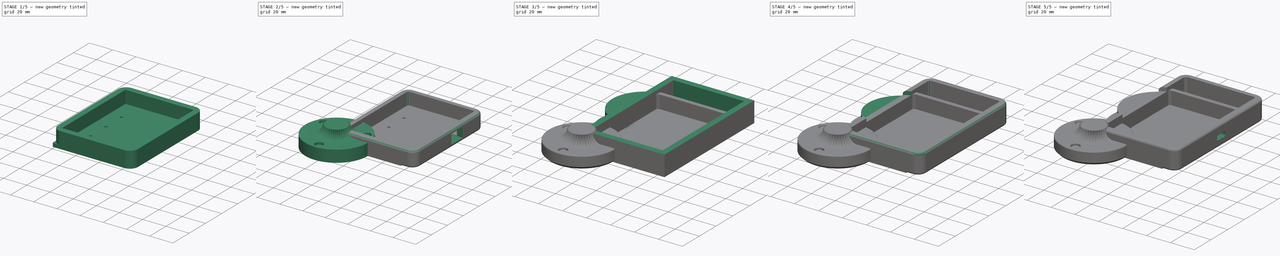
[diagram: build sequence overview — one tinted view per stage of 5, left to right]
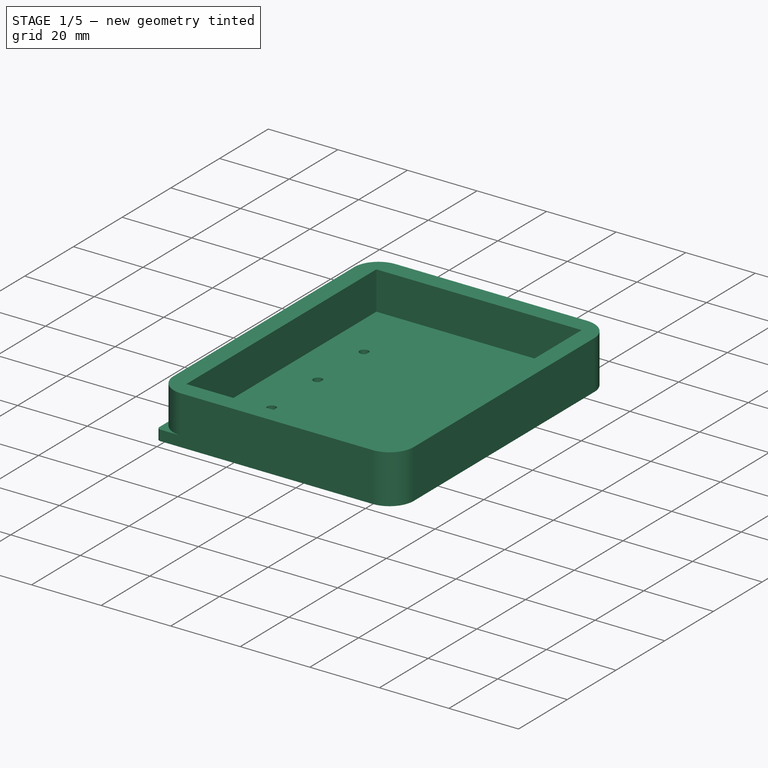
[diagram: stage 1 of 5 — iso view after this stage's code; geometry added in this stage tinted green]
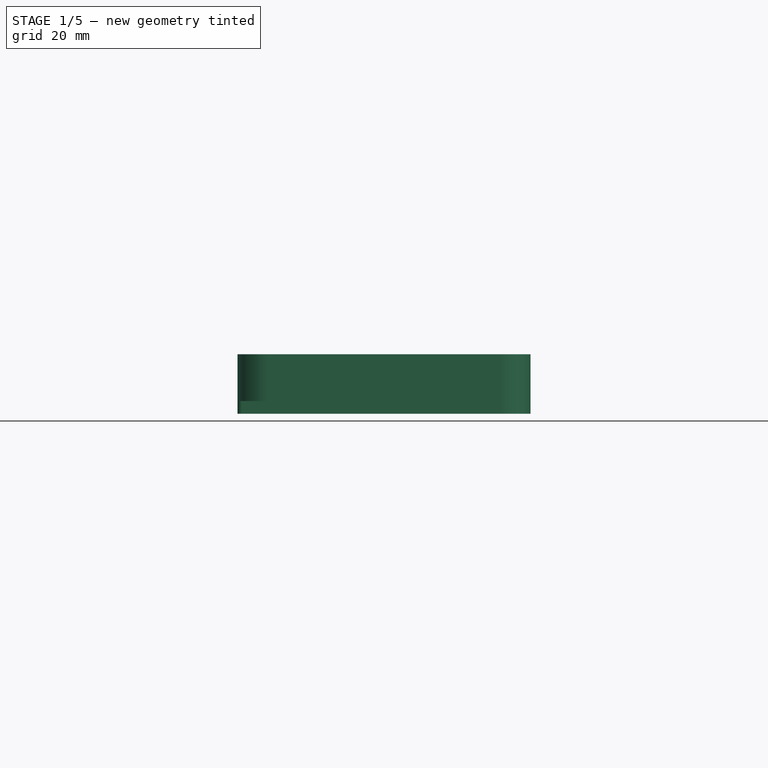
[diagram: stage 1 of 5 — front view after this stage's code; geometry added in this stage tinted green]
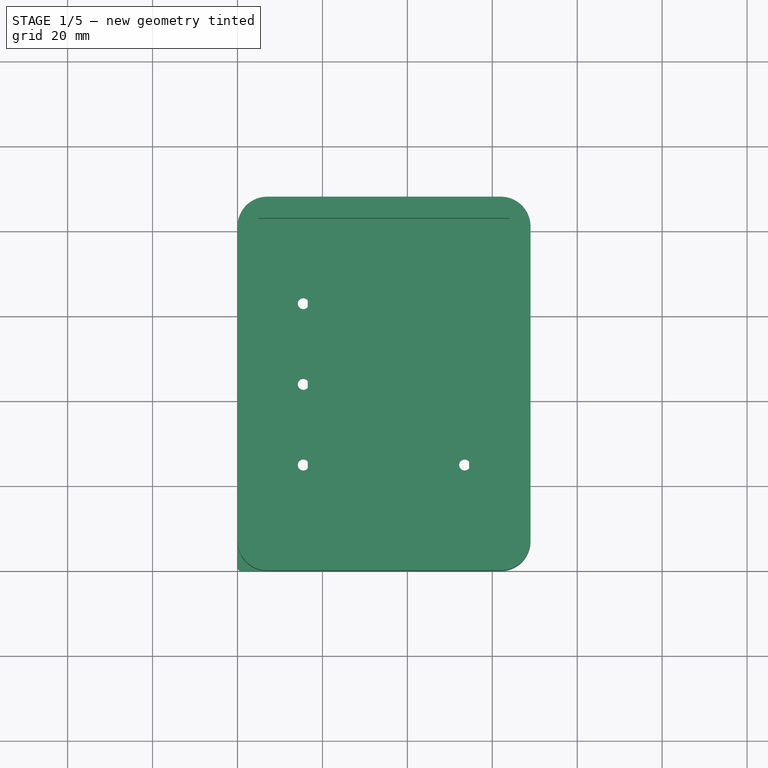
[diagram: stage 1 of 5 — top view after this stage's code; geometry added in this stage tinted green]
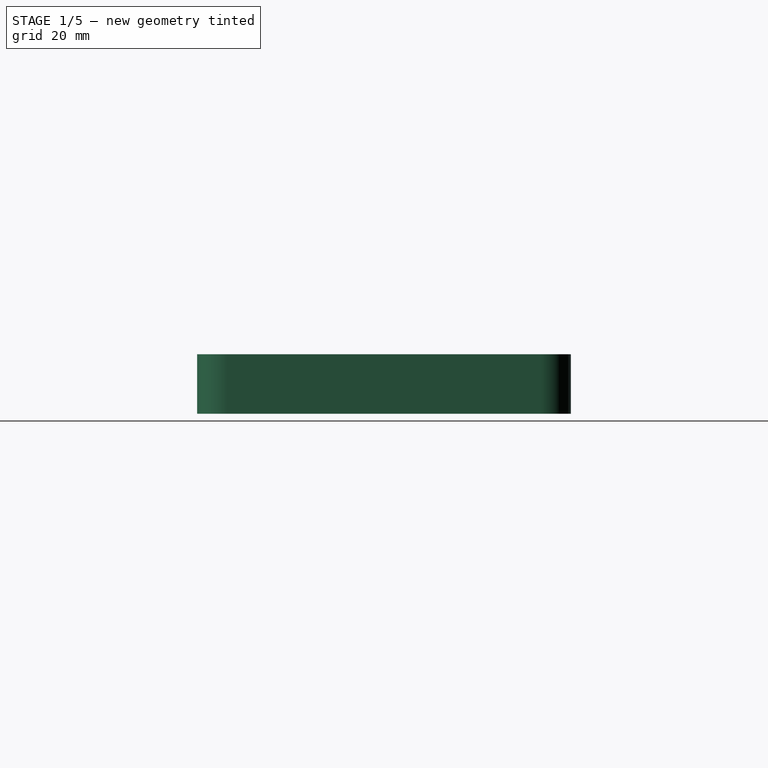
[diagram: stage 1 of 5 — right view after this stage's code; geometry added in this stage tinted green]
FCSTD DOCUMENT  (FreeCAD 0.19R)
Label: Keeb_v2
License: All rights reserved
LicenseURL: http://en.wikipedia.org/wiki/All_rights_reserved
objects: Sketcher::SketchObject×26, PartDesign::Pocket×17, PartDesign::Fillet×8, PartDesign::Pad×7, PartDesign::Body×6, Spreadsheet::Sheet×2, PartDesign::PolarPattern×2, PartDesign::Chamfer×2, PartDesign::Revolution×1, PartDesign::SubtractivePipe×1
note: 106 computed .brp shape members not serialized (recipe doc carries the construction recipe); baked Part::Feature solids carry a one-line shape summary decoded from their .brp

FEATURE [PartDesign::Body] Body003  label="Knob"
  Group = -> [Sketch017,Revolution,Sketch018,SubtractivePipe,PolarPattern,Sketch019,Pocket011,PolarPattern001,Fillet004,Chamfer,Chamfer001]
  Origin = -> Origin003
  Tip = -> Chamfer001
FEATURE [Sketcher::SketchObject] Sketch020
  FullyConstrained = true
  MapMode = 5
  Support = -> [XY_Plane004]
  expr: Constraints[213] = <<Dimensions>>.controller_width / 4
  expr: Constraints[115] = <<Dimensions>>.switch
  expr: Constraints[116] = <<Dimensions>>.switch_hole
  expr: Constraints[134] = <<Dimensions>>.knob
  expr: Constraints[117] = <<Dimensions>>.switch * 3
  expr: Constraints[160] = <<Dimensions>>.controller_width
  expr: Constraints[118] = <<Dimensions>>.switch * 4
  expr: Constraints[189] = <<Dimensions>>.switch * 2
  expr: Constraints[125] = <<Dimensions>>.switch / 2
  expr: Constraints[145] = <<Dimensions>>.pin_width
  expr: Constraints[146] = <<Dimensions>>.pin_height - <<Dimensions>>.pin_width
  expr: Constraints[203] = <<Dimensions>>.screw_hole
  sketch-geometry (79):
    g0: LineSegment StartX=0 StartY=0 StartZ=0 EndX=57 EndY=0 EndZ=0
    g1: LineSegment StartX=57 StartY=0 StartZ=0 EndX=57 EndY=76 EndZ=0
    g2: LineSegment StartX=57 StartY=76 StartZ=0 EndX=0 EndY=76 EndZ=0
    g3: LineSegment StartX=0 StartY=76 StartZ=0 EndX=0 EndY=0 EndZ=0
    g4: LineSegment StartX=2.45 StartY=2.45 StartZ=0 EndX=16.55 EndY=2.45 EndZ=0
    g5: LineSegment StartX=16.55 StartY=2.45 StartZ=0 EndX=16.55 EndY=16.55 EndZ=0
    g6: LineSegment StartX=16.55 StartY=16.55 StartZ=0 EndX=2.45 EndY=16.55 EndZ=0
    g7: LineSegment StartX=2.45 StartY=16.55 StartZ=0 EndX=2.45 EndY=2.45 EndZ=0
    g8: LineSegment StartX=2.45 StartY=21.45 StartZ=0 EndX=16.55 EndY=21.45 EndZ=0
    g9: LineSegment StartX=16.55 StartY=21.45 StartZ=0 EndX=16.55 EndY=35.55 EndZ=0
    g10: LineSegment StartX=16.55 StartY=35.55 StartZ=0 EndX=2.45 EndY=35.55 EndZ=0
    g11: LineSegment StartX=2.45 StartY=35.55 StartZ=0 EndX=2.45 EndY=21.45 EndZ=0
    g12: LineSegment StartX=2.45 StartY=40.45 StartZ=0 EndX=16.55 EndY=40.45 EndZ=0
    g13: LineSegment StartX=16.55 StartY=40.45 StartZ=0 EndX=16.55 EndY=54.55 EndZ=0
    g14: LineSegment StartX=16.55 StartY=54.55 StartZ=0 EndX=2.45 EndY=54.55 EndZ=0
    g15: LineSegment StartX=2.45 StartY=54.55 StartZ=0 EndX=2.45 EndY=40.45 EndZ=0
    g16: LineSegment StartX=2.45 StartY=59.45 StartZ=0 EndX=16.55 EndY=59.45 EndZ=0
    g17: LineSegment StartX=16.55 StartY=59.45 StartZ=0 EndX=16.55 EndY=73.55 EndZ=0
    g18: LineSegment StartX=16.55 StartY=73.55 StartZ=0 EndX=2.45 EndY=73.55 EndZ=0
    g19: LineSegment StartX=2.45 StartY=73.55 StartZ=0 EndX=2.45 EndY=59.45 EndZ=0
    g20: LineSegment StartX=21.45 StartY=21.45 StartZ=0 EndX=35.55 EndY=21.45 EndZ=0
    g21: LineSegment StartX=35.55 StartY=21.45 StartZ=0 EndX=35.55 EndY=35.55 EndZ=0
    g22: LineSegment StartX=35.55 StartY=35.55 StartZ=0 EndX=21.45 EndY=35.55 EndZ=0
    g23: LineSegment StartX=21.45 StartY=35.55 StartZ=0 EndX=21.45 EndY=21.45 EndZ=0
    g24: LineSegment StartX=40.45 StartY=21.45 StartZ=0 EndX=54.55 EndY=21.45 EndZ=0
    g25: LineSegment StartX=54.55 StartY=21.45 StartZ=0 EndX=54.55 EndY=35.55 EndZ=0
    g26: LineSegment StartX=54.55 StartY=35.55 StartZ=0 EndX=40.45 EndY=35.55 EndZ=0
    g27: LineSegment StartX=40.45 StartY=35.55 StartZ=0 EndX=40.45 EndY=21.45 EndZ=0
    g28: LineSegment StartX=21.45 StartY=2.45 StartZ=0 EndX=35.55 EndY=2.45 EndZ=0
    g29: LineSegment StartX=35.55 StartY=2.45 StartZ=0 EndX=35.55 EndY=16.55 EndZ=0
    g30: LineSegment StartX=35.55 StartY=16.55 StartZ=0 EndX=21.45 EndY=16.55 EndZ=0
    g31: LineSegment StartX=21.45 StartY=16.55 StartZ=0 EndX=21.45 EndY=2.45 EndZ=0
    g32: LineSegment StartX=40.45 StartY=2.45 StartZ=0 EndX=54.55 EndY=2.45 EndZ=0
    g33: LineSegment StartX=54.55 StartY=2.45 StartZ=0 EndX=54.55 EndY=16.55 EndZ=0
    g34: LineSegment StartX=54.55 StartY=16.55 StartZ=0 EndX=40.45 EndY=16.55 EndZ=0
    g35: LineSegment StartX=40.45 StartY=16.55 StartZ=0 EndX=40.45 EndY=2.45 EndZ=0
    g36: Circle CenterX=47.5 CenterY=66.5 CenterZ=0 NormalX=0 NormalY=0 NormalZ=1 AngleXU=0 Radius=3.5
    g37: LineSegment StartX=2.45 StartY=2.45 StartZ=0 EndX=2.45 EndY=21.45 EndZ=0
    g38: LineSegment StartX=2.45 StartY=21.45 StartZ=0 EndX=2.45 EndY=40.45 EndZ=0
    g39: LineSegment StartX=2.45 StartY=40.45 StartZ=0 EndX=2.45 EndY=59.45 EndZ=0
    g40: LineSegment StartX=2.45 StartY=2.45 StartZ=0 EndX=21.45 EndY=2.45 EndZ=0
    g41: LineSegment StartX=21.45 StartY=2.45 StartZ=0 EndX=40.45 EndY=2.45 EndZ=0
    g42: LineSegment StartX=2.45 StartY=21.45 StartZ=0 EndX=21.45 EndY=21.45 EndZ=0
    g43: LineSegment StartX=21.45 StartY=21.45 StartZ=0 EndX=40.45 EndY=21.45 EndZ=0
    g44: LineSegment StartX=57 StartY=76 StartZ=0 EndX=47.5 EndY=76 EndZ=0
    g45: LineSegment StartX=47.5 StartY=76 StartZ=0 EndX=47.5 EndY=66.5 EndZ=0
    g46: LineSegment StartX=2.45 StartY=73.55 StartZ=0 EndX=0 EndY=76 EndZ=0
    g47: LineSegment StartX=2.45 StartY=2.45 StartZ=0 EndX=0 EndY=0 EndZ=0
    g48: LineSegment StartX=54.55 StartY=2.45 StartZ=0 EndX=57 EndY=0 EndZ=0
    g49: ArcOfCircle CenterX=21 CenterY=74.5 CenterZ=0 NormalX=0 NormalY=0 NormalZ=1 AngleXU=0 Radius=0.75 StartAngle=1.2e-15 EndAngle=3.14159
    g50: ArcOfCircle CenterX=21 CenterY=58.5 CenterZ=0 NormalX=0 NormalY=0 NormalZ=1 AngleXU=0 Radius=0.75 StartAngle=3.14159 EndAngle=6.28319
    g51: LineSegment StartX=20.25 StartY=74.5 StartZ=0 EndX=20.25 EndY=58.5 EndZ=0
    g52: LineSegment StartX=21.75 StartY=74.5 StartZ=0 EndX=21.75 EndY=58.5 EndZ=0
    g53: ArcOfCircle CenterX=36 CenterY=74.5 CenterZ=0 NormalX=0 NormalY=0 NormalZ=1 AngleXU=0 Radius=0.75 StartAngle=1.5e-15 EndAngle=3.14159
    g54: ArcOfCircle CenterX=36 CenterY=58.5 CenterZ=0 NormalX=0 NormalY=0 NormalZ=1 AngleXU=0 Radius=0.75 StartAngle=3.14159 EndAngle=6.28319
    g55: LineSegment StartX=35.25 StartY=74.5 StartZ=0 EndX=35.25 EndY=58.5 EndZ=0
    g56: LineSegment StartX=36.75 StartY=58.5 StartZ=0 EndX=36.75 EndY=74.5 EndZ=0
    g57: LineSegment StartX=0 StartY=76 StartZ=0 EndX=20.25 EndY=74.5 EndZ=0
    g58: LineSegment StartX=36.75 StartY=74.5 StartZ=0 EndX=57 EndY=76 EndZ=0
    g59: LineSegment StartX=16.55 StartY=59.45 StartZ=0 EndX=21 EndY=58.5 EndZ=0
    g60: LineSegment StartX=16.55 StartY=73.55 StartZ=0 EndX=21 EndY=74.5 EndZ=0
    g61: Circle CenterX=9.5 CenterY=57 CenterZ=0 NormalX=0 NormalY=0 NormalZ=1 AngleXU=0 Radius=1.3
    g62: Circle CenterX=9.5 CenterY=19 CenterZ=0 NormalX=0 NormalY=0 NormalZ=1 AngleXU=0 Radius=1.3
    g63: Circle CenterX=47.5 CenterY=19 CenterZ=0 NormalX=0 NormalY=0 NormalZ=1 AngleXU=0 Radius=1.3
    g64: Circle CenterX=47.5 CenterY=57 CenterZ=0 NormalX=0 NormalY=0 NormalZ=1 AngleXU=0 Radius=1.3
    g65: Circle CenterX=9.5 CenterY=38 CenterZ=0 NormalX=0 NormalY=0 NormalZ=1 AngleXU=0 Radius=1.3
    g66: Circle CenterX=47.5 CenterY=38 CenterZ=0 NormalX=0 NormalY=0 NormalZ=1 AngleXU=0 Radius=1.3
    g67: LineSegment StartX=9.5 StartY=57 StartZ=0 EndX=9.5 EndY=38 EndZ=0
    g68: LineSegment StartX=9.5 StartY=38 StartZ=0 EndX=9.5 EndY=19 EndZ=0
    g69: LineSegment StartX=9.5 StartY=19 StartZ=0 EndX=47.5 EndY=19 EndZ=0
    g70: LineSegment StartX=47.5 StartY=19 StartZ=0 EndX=47.5 EndY=38 EndZ=0
    g71: LineSegment StartX=47.5 StartY=38 StartZ=0 EndX=47.5 EndY=57 EndZ=0
    g72: LineSegment StartX=2.45 StartY=59.45 StartZ=0 EndX=9.5 EndY=57 EndZ=0
    g73: LineSegment StartX=9.5 StartY=57 StartZ=0 EndX=2.45 EndY=54.55 EndZ=0
    g74: LineSegment StartX=9.5 StartY=57 StartZ=0 EndX=16.55 EndY=59.45 EndZ=0
    g75: Circle CenterX=28.5 CenterY=66.5 CenterZ=0 NormalX=0 NormalY=0 NormalZ=1 AngleXU=0 Radius=2.0625
    g76: LineSegment StartX=21 StartY=58.5 StartZ=0 EndX=28.5 EndY=66.5 EndZ=0
    g77: LineSegment StartX=28.5 StartY=66.5 StartZ=0 EndX=36 EndY=74.5 EndZ=0
    g78: LineSegment StartX=36 StartY=58.5 StartZ=0 EndX=28.5 EndY=66.5 EndZ=0
  constraints (214):
    c: Coincident(g0,g-1)
    c: Coincident(g1,g0)
    c: Vertical(g1)
    c: Horizontal(g2)
    c: Coincident(g3,g2)
    c: Coincident(g3,g0)
    c: Coincident(g1,g2)
    c: Horizontal(g0)
    c: Vertical(g3)
    c: Coincident(g4,g5)
    c: Coincident(g5,g6)
    c: Coincident(g6,g7)
    c: Coincident(g7,g4)
    c: Horizontal(g4)
    c: Horizontal(g6)
    c: Vertical(g5)
    c: Vertical(g7)
    c: Coincident(g8,g9)
    c: Coincident(g9,g10)
    c: Coincident(g10,g11)
    c: Coincident(g11,g8)
    c: Horizontal(g8)
    c: Horizontal(g10)
    c: Vertical(g9)
    c: Vertical(g11)
    c: Coincident(g12,g13)
    c: Coincident(g13,g14)
    c: Coincident(g14,g15)
    c: Coincident(g15,g12)
    c: Horizontal(g12)
    c: Horizontal(g14)
    c: Vertical(g13)
    c: Vertical(g15)
    c: Coincident(g16,g17)
    c: Coincident(g17,g18)
    c: Coincident(g18,g19)
    c: Coincident(g19,g16)
    c: Horizontal(g16)
    c: Horizontal(g18)
    c: Vertical(g17)
    c: Vertical(g19)
    c: Coincident(g20,g21)
    c: Coincident(g21,g22)
    c: Coincident(g22,g23)
    c: Coincident(g23,g20)
    c: Horizontal(g20)
    c: Horizontal(g22)
    c: Vertical(g21)
    c: Vertical(g23)
    c: Coincident(g24,g25)
    c: Coincident(g25,g26)
    c: Coincident(g26,g27)
    c: Coincident(g27,g24)
    c: Horizontal(g24)
    c: Horizontal(g26)
    c: Vertical(g25)
    c: Vertical(g27)
    c: Coincident(g28,g29)
    c: Coincident(g29,g30)
    c: Coincident(g30,g31)
    c: Coincident(g31,g28)
    c: Horizontal(g28)
    c: Horizontal(g30)
    c: Vertical(g29)
    c: Vertical(g31)
    c: Coincident(g32,g33)
    c: Coincident(g33,g34)
    c: Coincident(g34,g35)
    c: Coincident(g35,g32)
    c: Horizontal(g32)
    c: Horizontal(g34)
    c: Vertical(g33)
    c: Vertical(g35)
    c: Equal(g18,g17)
    c: Equal(g17,g14)
    c: Equal(g14,g13)
    c: Equal(g13,g10)
    c: Equal(g10,g9)
    c: Equal(g9,g6)
    c: Equal(g6,g5)
    c: Equal(g5,g22)
    c: Equal(g22,g21)
    c: Equal(g21,g30)
    c: Equal(g30,g29)
    c: Equal(g29,g26)
    c: Equal(g26,g25)
    c: Equal(g25,g34)
    c: Equal(g34,g33)
    c: Coincident(g37,g4)
    c: Coincident(g37,g8)
    c: Vertical(g37)
    c: Coincident(g38,g8)
    c: Coincident(g38,g12)
    c: Vertical(g38)
    c: Coincident(g39,g12)
    c: Coincident(g39,g16)
    c: Vertical(g39)
    c: Coincident(g40,g4)
    c: Coincident(g40,g28)
    c: Coincident(g41,g28)
    c: Coincident(g41,g32)
    c: Coincident(g42,g8)
    c: Coincident(g42,g20)
    c: Coincident(g43,g20)
    c: Coincident(g43,g24)
    c: Horizontal(g42)
    c: Horizontal(g40)
    c: Horizontal(g41)
    c: Horizontal(g43)
    c: Equal(g42,g40)
    c: Equal(g40,g41)
    c: Equal(g41,g43)
    c: Equal(g43,g37)
    c: Equal(g37,g38)
    c: Equal(g38,g39)
    c: DistanceX(g40,g40) = 19
    c: DistanceX(g4,g4) = 14.1
    c: DistanceX(g0,g0) = 57
    c: DistanceY(g3,g3) = 76
    c: Coincident(g44,g1)
    c: Coincident(g45,g44)
    c: Coincident(g45,g36)
    c: Equal(g45,g44)
    c: Horizontal(g44)
    c: Vertical(g45)
    c: DistanceY(g45,g45) = 9.5
    c: Coincident(g46,g18)
    c: Coincident(g46,g2)
    c: Coincident(g47,g4)
    c: Coincident(g47,g0)
    c: Coincident(g48,g32)
    c: Coincident(g48,g0)
    c: Equal(g48,g47)
    c: Equal(g47,g46)
    c: Diameter(g36) = 7
    c: Coincident(g51,g49)
    c: Coincident(g51,g50)
    c: Vertical(g51)
    c: Coincident(g52,g49)
    c: Coincident(g52,g50)
    c: Vertical(g52)
    c: Horizontal(g50,g50)
    c: Horizontal(g50,g50)
    c: Horizontal(g49,g49)
    c: Horizontal(g49,g49)
    c: Diameter(g49) = 1.5
    c: DistanceY(g52,g52) = 16
    c: Horizontal(g54,g54)
    c: Horizontal(g54,g54)
    c: Horizontal(g53,g53)
    c: Horizontal(g53,g53)
    c: Coincident(g55,g53)
    c: Coincident(g55,g54)
    c: Coincident(g56,g54)
    c: Coincident(g56,g53)
    c: Vertical(g56)
    c: Equal(g55,g52)
    c: Equal(g53,g54)
    c: Equal(g54,g50)
    c: Horizontal(g50,g54)
    c: DistanceX(g50,g54) = 16.5
    c: Coincident(g57,g2)
    c: Coincident(g57,g49)
    c: Coincident(g58,g53)
    c: Coincident(g58,g1)
    c: Equal(g58,g57)
    c: Coincident(g59,g50)
    c: Coincident(g60,g17)
    c: Coincident(g60,g49)
    c: Equal(g60,g59)
    c: Coincident(g67,g61)
    c: Coincident(g67,g65)
    c: Vertical(g67)
    c: Coincident(g68,g65)
    c: Coincident(g68,g62)
    c: Vertical(g68)
    c: Coincident(g69,g62)
    c: Coincident(g69,g63)
    c: Horizontal(g69)
    c: Coincident(g70,g63)
    c: Coincident(g70,g66)
    c: Coincident(g71,g66)
    c: Coincident(g71,g64)
    c: Vertical(g71)
    c: Vertical(g70)
    c: Equal(g71,g70)
    c: Equal(g70,g68)
    c: Equal(g68,g67)
    c: Equal(g40,g71)
    c: DistanceX(g69,g69) = 38
    c: Coincident(g72,g16)
    c: Coincident(g72,g61)
    c: Coincident(g73,g61)
    c: Coincident(g73,g14)
    c: Coincident(g74,g61)
    c: Coincident(g74,g16)
    c: Equal(g74,g72)
    c: Equal(g72,g73)
    c: Equal(g61,g65)
    c: Equal(g65,g62)
    c: Equal(g62,g63)
    c: Equal(g63,g66)
    c: Equal(g66,g64)
    c: Diameter(g63) = 2.6
    c: Coincident(g59,g16)
    c: Coincident(g76,g50)
    c: Coincident(g76,g75)
    c: Coincident(g77,g75)
    c: Coincident(g77,g53)
    c: Coincident(g78,g54)
    c: Coincident(g78,g75)
    c: Equal(g77,g76)
    c: Equal(g76,g78)
    c: Diameter(g75) = 4.125
FEATURE [PartDesign::Pad] Pad005
  Direction = (1,1,1)
  Length = 3
  Length2 = 100
  Profile = -> Sketch020
  Type = 0
  expr: Length = <<Dimensions>>.thickness
FEATURE [Sketcher::SketchObject] Sketch022
  FullyConstrained = true
  MapMode = 5
  Placement = pos=(0,0,0) rot=(1,0,0;3.14159rad)
  expr: Constraints[18] = Spreadsheet.switch * 2.5
  expr: Constraints[15] = Spreadsheet.switch * 3.5
  expr: Constraints[11] = <<Dimensions>>.encoder_long
  expr: Constraints[12] = <<Dimensions>>.encoder_short
  sketch-geometry (7):
    g0: LineSegment StartX=55 StartY=-60 StartZ=0 EndX=40 EndY=-60 EndZ=0
    g1: LineSegment StartX=40 StartY=-60 StartZ=0 EndX=40 EndY=-73 EndZ=0
    g2: LineSegment StartX=40 StartY=-73 StartZ=0 EndX=55 EndY=-73 EndZ=0
    g3: LineSegment StartX=55 StartY=-73 StartZ=0 EndX=55 EndY=-60 EndZ=0
    g4: Circle CenterX=47.5 CenterY=-66.5 CenterZ=0 NormalX=0 NormalY=0 NormalZ=1 AngleXU=0 Radius=9.92472
    g5: LineSegment StartX=0 StartY=0 StartZ=0 EndX=0 EndY=-66.5 EndZ=0
    g6: LineSegment StartX=0 StartY=-66.5 StartZ=0 EndX=47.5 EndY=-66.5 EndZ=0
  constraints (20):
    c: Coincident(g0,g1)
    c: Coincident(g1,g2)
    c: Coincident(g2,g3)
    c: Coincident(g3,g0)
    c: Equal(g0,g2)
    c: PointOnObject(g0,g4)
    c: PointOnObject(g1,g4)
    c: PointOnObject(g2,g4)
    c: PointOnObject(g3,g4)
    c: Equal(g1,g3)
    c: Horizontal(g0)
    c: DistanceX(g0,g0) = 15
    c: DistanceY(g3,g3) = 13
    c: Coincident(g5,g-1)
    c: Vertical(g5)
    c: DistanceY(g5,g5) = 66.5
    c: Coincident(g6,g5)
    c: Horizontal(g6)
    c: DistanceX(g6,g6) = 47.5
    c: Coincident(g4,g6)
FEATURE [PartDesign::Pocket] Pocket013
  BaseFeature = -> Pad005
  Length = 2
  Length2 = 100
  Profile = -> Sketch022
  Type = 0
  expr: Length = <<Dimensions>>.encoder_depth
FEATURE [PartDesign::Fillet] Fillet005
  Base = -> Pocket013 [Edge1,Edge2,Edge8,Edge5]
  BaseFeature = -> Pocket013
  Radius = 1
  SupportTransform = false
FEATURE [Sketcher::SketchObject] Sketch023
  FullyConstrained = true
  MapMode = 5
  Support = -> [XY_Plane005]
  expr: Constraints[9] = <<Dimensions>>.switch * 3 + 2 * (<<Dimensions>>.gap + <<Dimensions>>.wall)
  expr: Constraints[10] = <<Dimensions>>.switch * 4 + 2 * (<<Dimensions>>.gap + <<Dimensions>>.wall)
  expr: Constraints[29] = <<Dimensions>>.switch * 2
  expr: Constraints[35] = <<Dimensions>>.screw_hole
  expr: Constraints[44] = <<Dimensions>>.switch
  sketch-geometry (18):
    g0: LineSegment StartX=0 StartY=0 StartZ=0 EndX=69 EndY=0 EndZ=0
    g1: LineSegment StartX=69 StartY=0 StartZ=0 EndX=69 EndY=88 EndZ=0
    g2: LineSegment StartX=69 StartY=88 StartZ=0 EndX=0 EndY=88 EndZ=0
    g3: LineSegment StartX=0 StartY=88 StartZ=0 EndX=0 EndY=0 EndZ=0
    g4: Circle CenterX=15.5 CenterY=63 CenterZ=0 NormalX=0 NormalY=0 NormalZ=1 AngleXU=0 Radius=1.3
    g5: Circle CenterX=15.5 CenterY=44 CenterZ=0 NormalX=0 NormalY=0 NormalZ=1 AngleXU=0 Radius=1.3
    g6: Circle CenterX=15.5 CenterY=25 CenterZ=0 NormalX=0 NormalY=0 NormalZ=1 AngleXU=0 Radius=1.3
    g7: Circle CenterX=53.5 CenterY=25 CenterZ=0 NormalX=0 NormalY=0 NormalZ=1 AngleXU=0 Radius=1.3
    g8: Circle CenterX=53.5 CenterY=44 CenterZ=0 NormalX=0 NormalY=0 NormalZ=1 AngleXU=0 Radius=1.3
    g9: Circle CenterX=53.5 CenterY=63 CenterZ=0 NormalX=0 NormalY=0 NormalZ=1 AngleXU=0 Radius=1.3
    g10: LineSegment StartX=15.5 StartY=63 StartZ=0 EndX=15.5 EndY=44 EndZ=0
    g11: LineSegment StartX=15.5 StartY=44 StartZ=0 EndX=15.5 EndY=25 EndZ=0
    g12: LineSegment StartX=15.5 StartY=25 StartZ=0 EndX=53.5 EndY=25 EndZ=0
    g13: LineSegment StartX=53.5 StartY=25 StartZ=0 EndX=53.5 EndY=44 EndZ=0
    g14: LineSegment StartX=53.5 StartY=44 StartZ=0 EndX=53.5 EndY=63 EndZ=0
    g15: LineSegment StartX=0 StartY=88 StartZ=0 EndX=15.5 EndY=63 EndZ=0
    g16: LineSegment StartX=0 StartY=0 StartZ=0 EndX=15.5 EndY=25 EndZ=0
    g17: LineSegment StartX=53.5 StartY=63 StartZ=0 EndX=69 EndY=88 EndZ=0
  constraints (45):
    c: Coincident(g0,g-1)
    c: Coincident(g1,g0)
    c: Vertical(g1)
    c: Coincident(g2,g1)
    c: Horizontal(g2)
    c: Coincident(g3,g2)
    c: Coincident(g3,g0)
    c: Horizontal(g0)
    c: Vertical(g3)
    c: DistanceX(g0,g0) = 69
    c: DistanceY(g3,g3) = 88
    c: Coincident(g10,g4)
    c: Coincident(g10,g5)
    c: Vertical(g10)
    c: Coincident(g11,g5)
    c: Coincident(g11,g6)
    c: Vertical(g11)
    c: Coincident(g12,g6)
    c: Coincident(g12,g7)
    c: Horizontal(g12)
    c: Coincident(g13,g7)
    c: Coincident(g13,g8)
    c: Vertical(g13)
    c: Coincident(g14,g8)
    c: Coincident(g14,g9)
    c: Vertical(g14)
    c: Equal(g10,g11)
    c: Equal(g11,g13)
    c: Equal(g13,g14)
    c: DistanceX(g12,g12) = 38
    c: Equal(g5,g4)
    c: Equal(g4,g6)
    c: Equal(g6,g7)
    c: Equal(g7,g8)
    c: Equal(g8,g9)
    c: Diameter(g7) = 2.6
    c: Coincident(g15,g2)
    c: Coincident(g15,g4)
    c: Coincident(g16,g0)
    c: Coincident(g16,g6)
    c: Coincident(g17,g9)
    c: Coincident(g17,g1)
    c: Equal(g17,g15)
    c: Equal(g15,g16)
    c: DistanceY(g10,g10) = 19
FEATURE [PartDesign::Pad] Pad006
  Direction = (1,1,1)
  Length = 14
  Length2 = 100
  Profile = -> Sketch023
  Type = 0
  expr: Length = <<Dimensions>>.thickness * 2 + <<Dimensions>>.spacer
FEATURE [Sketcher::SketchObject] Sketch024
  ExternalGeometry = -> [Pad006]
  FullyConstrained = true
  MapMode = 5
  Placement = pos=(0,0,14) rot=(0,0,1;0rad)
  Support = -> [Pad006]
  expr: Constraints[8] = <<Dimensions>>.switch * 3 + 2 * <<Dimensions>>.gap
  expr: Constraints[9] = <<Dimensions>>.switch * 4 + 2 * <<Dimensions>>.gap
  sketch-geometry (7):
    g0: LineSegment StartX=5 StartY=83 StartZ=0 EndX=64 EndY=83 EndZ=0
    g1: LineSegment StartX=64 StartY=83 StartZ=0 EndX=64 EndY=5 EndZ=0
    g2: LineSegment StartX=64 StartY=5 StartZ=0 EndX=5 EndY=5 EndZ=0
    g3: LineSegment StartX=5 StartY=5 StartZ=0 EndX=5 EndY=83 EndZ=0
    g4: LineSegment StartX=0 StartY=88 StartZ=0 EndX=5 EndY=83 EndZ=0
    g5: LineSegment StartX=64 StartY=83 StartZ=0 EndX=69 EndY=88 EndZ=0
    g6: LineSegment StartX=64 StartY=5 StartZ=0 EndX=69 EndY=0 EndZ=0
  constraints (18):
    c: Coincident(g0,g1)
    c: Coincident(g1,g2)
    c: Coincident(g2,g3)
    c: Coincident(g3,g0)
    c: Horizontal(g0)
    c: Horizontal(g2)
    c: Vertical(g1)
    c: Vertical(g3)
    c: DistanceX(g0,g0) = 59
    c: DistanceY(g1,g1) = 78
    c: Coincident(g4,g-3)
    c: Coincident(g4,g0)
    c: Coincident(g5,g0)
    c: Coincident(g5,g-4)
    c: Coincident(g6,g1)
    c: Coincident(g6,g-4)
    c: Equal(g6,g5)
    c: Equal(g5,g4)
FEATURE [PartDesign::Pocket] Pocket014
  BaseFeature = -> Pad006
  Length = 11
  Length2 = 100
  Profile = -> Sketch024
  Type = 0
  expr: Length = <<Dimensions>>.spacer + <<Dimensions>>.thickness
FEATURE [Sketcher::SketchObject] Sketch025
  ExternalGeometry = -> [Pocket014]
  FullyConstrained = true
  MapMode = 5
  Placement = pos=(0,0,0) rot=(1,0,0;3.14159rad)
  Support = -> [Pocket014]
  expr: Constraints[23] = <<Dimensions>>.feet
  expr: Constraints[24] = <<Dimensions>>.feet / 2 + <<Dimensions>>.gap + <<Dimensions>>.case_fillet
  expr: Constraints[25] = <<Dimensions>>.feet / 2 + <<Dimensions>>.gap + <<Dimensions>>.case_fillet
  expr: Constraints[37] = <<Dimensions>>.screw_head
  sketch-geometry (17):
    g0: Circle CenterX=6 CenterY=-6 CenterZ=0 NormalX=0 NormalY=0 NormalZ=1 AngleXU=0 Radius=3
    g1: Circle CenterX=63 CenterY=-6 CenterZ=0 NormalX=0 NormalY=0 NormalZ=1 AngleXU=0 Radius=3
    g2: Circle CenterX=63 CenterY=-82 CenterZ=0 NormalX=0 NormalY=0 NormalZ=1 AngleXU=0 Radius=3
    g3: Circle CenterX=6 CenterY=-82 CenterZ=0 NormalX=0 NormalY=0 NormalZ=1 AngleXU=0 Radius=3
    g4: LineSegment StartX=6 StartY=-6 StartZ=0 EndX=63 EndY=-6 EndZ=0
    g5: LineSegment StartX=63 StartY=-6 StartZ=0 EndX=63 EndY=-82 EndZ=0
    g6: LineSegment StartX=63 StartY=-82 StartZ=0 EndX=6 EndY=-82 EndZ=0
    g7: LineSegment StartX=6 StartY=-82 StartZ=0 EndX=6 EndY=-6 EndZ=0
    g8: LineSegment StartX=6 StartY=-82 StartZ=0 EndX=0 EndY=-88 EndZ=0
    g9: LineSegment StartX=63 StartY=-82 StartZ=0 EndX=69 EndY=-88 EndZ=0
    g10: LineSegment StartX=69 StartY=0 StartZ=0 EndX=63 EndY=-6 EndZ=0
    g11: Circle CenterX=15.5 CenterY=-25 CenterZ=0 NormalX=0 NormalY=0 NormalZ=1 AngleXU=0 Radius=2.5
    g12: Circle CenterX=15.5 CenterY=-44 CenterZ=0 NormalX=0 NormalY=0 NormalZ=1 AngleXU=0 Radius=2.5
    g13: Circle CenterX=15.5 CenterY=-63 CenterZ=0 NormalX=0 NormalY=0 NormalZ=1 AngleXU=0 Radius=2.5
    g14: Circle CenterX=53.5 CenterY=-63 CenterZ=0 NormalX=0 NormalY=0 NormalZ=1 AngleXU=0 Radius=2.5
    g15: Circle CenterX=53.5 CenterY=-44 CenterZ=0 NormalX=0 NormalY=0 NormalZ=1 AngleXU=0 Radius=2.5
    g16: Circle CenterX=53.5 CenterY=-25 CenterZ=0 NormalX=0 NormalY=0 NormalZ=1 AngleXU=0 Radius=2.5
  constraints (38):
    c: Equal(g3,g2)
    c: Equal(g2,g1)
    c: Equal(g1,g0)
    c: Coincident(g4,g0)
    c: Coincident(g4,g1)
    c: Horizontal(g4)
    c: Coincident(g5,g1)
    c: Coincident(g5,g2)
    c: Vertical(g5)
    c: Coincident(g6,g2)
    c: Coincident(g6,g3)
    c: Horizontal(g6)
    c: Coincident(g7,g3)
    c: Coincident(g7,g0)
    c: Vertical(g7)
    c: Coincident(g8,g3)
    c: Coincident(g8,g-4)
    c: Coincident(g9,g2)
    c: Coincident(g9,g-4)
    c: Coincident(g10,g-3)
    c: Coincident(g10,g1)
    c: Equal(g10,g8)
    c: Equal(g8,g9)
    c: Diameter(g0) = 6
    c: DistanceX(g2,g9) = 6
    c: DistanceY(g9,g2) = 6
    c: Coincident(g11,g-5)
    c: Coincident(g12,g-10)
    c: Coincident(g13,g-9)
    c: Coincident(g14,g-8)
    c: Coincident(g15,g-7)
    c: Coincident(g16,g-6)
    c: Equal(g14,g15)
    c: Equal(g15,g16)
    c: Equal(g16,g11)
    c: Equal(g11,g12)
    c: Equal(g12,g13)
    c: Diameter(g11) = 5
FEATURE [PartDesign::Pocket] Pocket015
  BaseFeature = -> Pocket014
  Length = 1
  Length2 = 100
  Profile = -> Sketch025
  Type = 0
  expr: Length = <<Dimensions>>.feet_depth
FEATURE [PartDesign::Fillet] Fillet006
  Base = -> Pocket015 [Edge8,Edge5,Edge1,Edge2]
  BaseFeature = -> Pocket015
  Radius = 7
  SupportTransform = false
  expr: Radius = <<Dimensions>>.case_outer
FEATURE [PartDesign::Body] Body005  label="MacroPad_Case"
  Group = -> [Sketch023,Pad006,Sketch024,Pocket014,Sketch025,Pocket015,Fillet006,Fillet007,Sketch026,Pocket016]
  Origin = -> Origin005
  Tip = -> Pocket016
FEATURE [Sketcher::SketchObject] Sketch027
  FullyConstrained = true
  MapMode = 5
  Placement = pos=(0,0,3) rot=(0,0,1;0rad)
  Support = -> [Fillet005]
  expr: Constraints[22] = Spreadsheet.switch
  expr: Constraints[10] = Spreadsheet.switch / 2
  sketch-geometry (14):
    g0: LineSegment StartX=0 StartY=0 StartZ=0 EndX=9.5 EndY=0 EndZ=0
    g1: LineSegment StartX=9.5 StartY=38 StartZ=0 EndX=9.5 EndY=57 EndZ=0
    g2: LineSegment StartX=9.5 StartY=38 StartZ=0 EndX=28.5 EndY=38 EndZ=0
    g3: LineSegment StartX=28.5 StartY=38 StartZ=0 EndX=47.5 EndY=38 EndZ=0
    g4: LineSegment StartX=47.5 StartY=38 StartZ=0 EndX=47.5 EndY=57 EndZ=0
    g5: LineSegment StartX=47.5 StartY=38 StartZ=0 EndX=47.5 EndY=19 EndZ=0
    g6: LineSegment StartX=9.5 StartY=38 StartZ=0 EndX=9.5 EndY=19 EndZ=0
    g7: LineSegment StartX=9.5 StartY=19 StartZ=0 EndX=9.5 EndY=0 EndZ=0
    g8: Circle CenterX=9.5 CenterY=57 CenterZ=0 NormalX=0 NormalY=0 NormalZ=1 AngleXU=0 Radius=2.5
    g9: Circle CenterX=9.5 CenterY=38 CenterZ=0 NormalX=0 NormalY=0 NormalZ=1 AngleXU=0 Radius=2.5
    g10: Circle CenterX=47.5 CenterY=57 CenterZ=0 NormalX=0 NormalY=0 NormalZ=1 AngleXU=0 Radius=2.5
    g11: Circle CenterX=47.5 CenterY=38 CenterZ=0 NormalX=0 NormalY=0 NormalZ=1 AngleXU=0 Radius=2.5
    g12: Circle CenterX=47.5 CenterY=19 CenterZ=0 NormalX=0 NormalY=0 NormalZ=1 AngleXU=0 Radius=2.5
    g13: Circle CenterX=9.5 CenterY=19 CenterZ=0 NormalX=0 NormalY=0 NormalZ=1 AngleXU=0 Radius=2.5
  constraints (36):
    c: Vertical(g1)
    c: Horizontal(g2)
    c: Coincident(g3,g2)
    c: Horizontal(g3)
    c: Coincident(g4,g3)
    c: Vertical(g4)
    c: Coincident(g5,g3)
    c: Vertical(g5)
    c: Horizontal(g0)
    c: Coincident(g-1,g0)
    c: DistanceX(g0,g0) = 9.5
    c: Coincident(g6,g1)
    c: Vertical(g6)
    c: Coincident(g7,g6)
    c: Coincident(g7,g0)
    c: Vertical(g7)
    c: Equal(g7,g6)
    c: Equal(g6,g1)
    c: Equal(g1,g2)
    c: Equal(g2,g3)
    c: Equal(g3,g4)
    c: Equal(g4,g5)
    c: DistanceY(g4,g4) = 19
    c: Coincident(g2,g1)
    c: Coincident(g8,g1)
    c: Coincident(g9,g1)
    c: Coincident(g10,g4)
    c: Coincident(g11,g3)
    c: Coincident(g12,g5)
    c: Coincident(g13,g6)
    c: Equal(g8,g9)
    c: Equal(g9,g13)
    c: Equal(g13,g12)
    c: Equal(g12,g11)
    c: Equal(g11,g10)
    c: Diameter(g8) = 5
FEATURE [PartDesign::Pocket] Pocket017
  BaseFeature = -> Fillet005
  Length = 1
  Length2 = 100
  Profile = -> Sketch027
  Type = 0
FEATURE [PartDesign::Body] Body004  label="MacroPad_Plate"
  Group = -> [Sketch020,Pad005,Sketch022,Pocket013,Fillet005,Sketch027,Pocket017]
  Origin = -> Origin004
  Placement = pos=(6,6,11) rot=(0,0,1;0rad)
  Tip = -> Pocket017
  expr: .Placement.Base.x = <<Dimensions>>.gap + <<Dimensions>>.wall
  expr: .Placement.Base.y = <<Dimensions>>.gap + <<Dimensions>>.wall
  expr: .Placement.Base.z = <<Dimensions>>.thickness + <<Dimensions>>.spacer
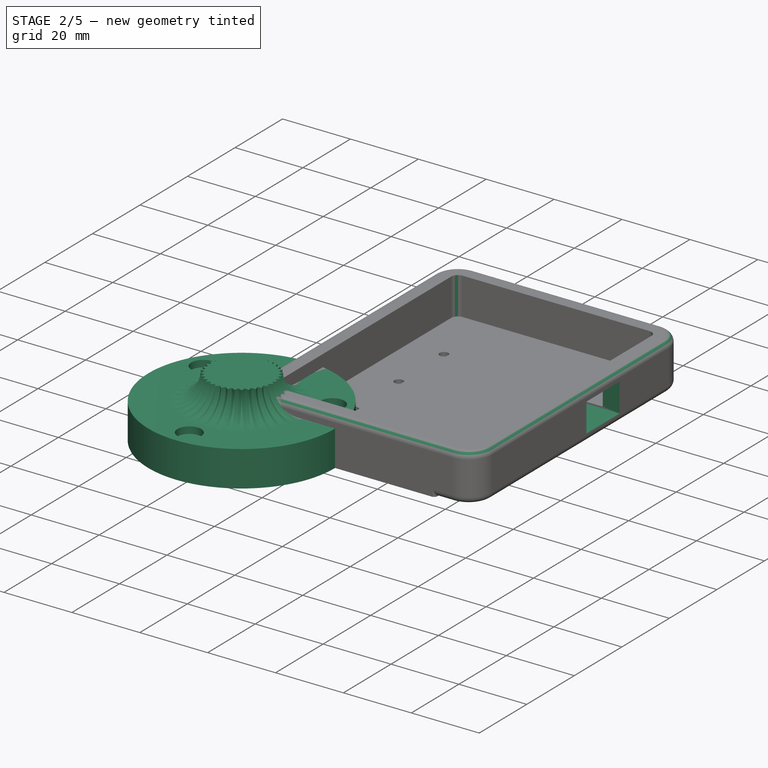
[diagram: stage 2 of 5 — iso view after this stage's code; geometry added in this stage tinted green]
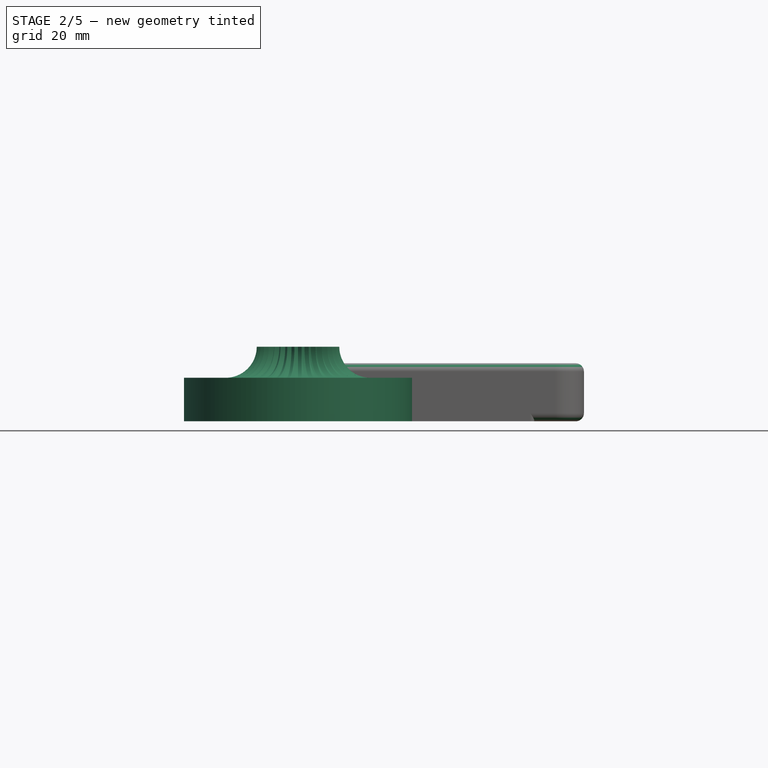
[diagram: stage 2 of 5 — front view after this stage's code; geometry added in this stage tinted green]
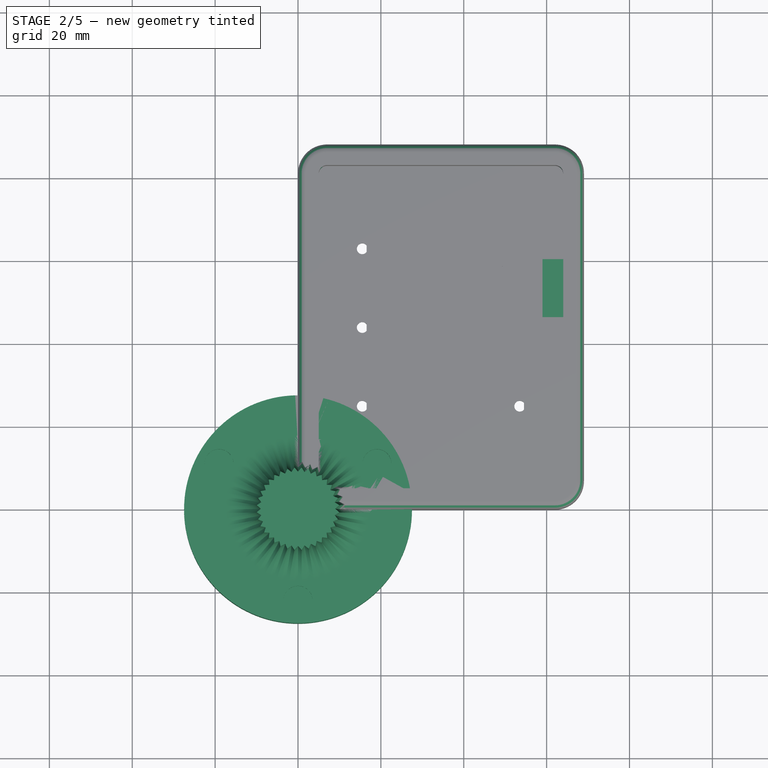
[diagram: stage 2 of 5 — top view after this stage's code; geometry added in this stage tinted green]
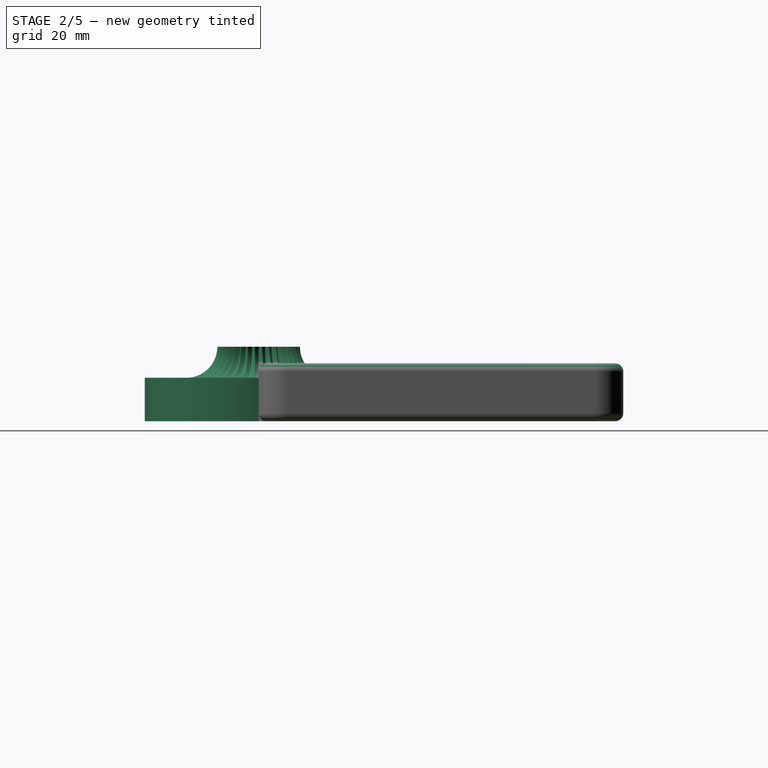
[diagram: stage 2 of 5 — right view after this stage's code; geometry added in this stage tinted green]
FEATURE [PartDesign::Body] Body002  label="plate with rounding"
  Group = -> [Sketch014,Pad004,Sketch015,Pocket009,Sketch016,Pocket010]
  Origin = -> Origin002
  Placement = pos=(6,6,11) rot=(0,0,1;0rad)
  Tip = -> Pocket010
FEATURE [Spreadsheet::Sheet] Spreadsheet001  label="Dimensions001"
  cells = A1=switch_hole; B1(switch_hole)==14.1mm; A2=switch; B2(switch)==19mm; A3=gap; B3(gap)==1mm; A4=wall ; B4(wall)==5mm; A5=spacer; B5(spacer)==8mm; A6=screw_hole; B6(screw_hole)==2.6mm; A7=screw_head; B7(screw_head)==5mm; A8=thickness; B8(thickness)==3mm; A9=knob; B9(knob)==7mm; A10=feet; B10(feet)==6mm; B11==switch * 2
FEATURE [Sketcher::SketchObject] Sketch017
  FullyConstrained = true
  MapMode = 5
  Placement = pos=(0,0,0) rot=(1,0,0;1.5708rad)
  Support = -> [XZ_Plane003]
  sketch-geometry (10):
    g0: LineSegment StartX=0 StartY=17 StartZ=0 EndX=3.5 EndY=17 EndZ=0
    g1: LineSegment StartX=3.5 StartY=17 StartZ=0 EndX=3.5 EndY=7 EndZ=0
    g2: LineSegment StartX=3.5 StartY=7 StartZ=0 EndX=16.5 EndY=7 EndZ=0
    g3: LineSegment StartX=16.5 StartY=7 StartZ=0 EndX=16.5 EndY=0 EndZ=0
    g4: LineSegment StartX=16.5 StartY=0 StartZ=0 EndX=27.5 EndY=0 EndZ=0
    g5: LineSegment StartX=27.5 StartY=0 StartZ=0 EndX=27.5 EndY=10.5 EndZ=0
    g6: LineSegment StartX=27.5 StartY=10.5 StartZ=0 EndX=17.5 EndY=10.5 EndZ=0
    g7: ArcOfCircle CenterX=17.5 CenterY=18 CenterZ=0 NormalX=0 NormalY=0 NormalZ=1 AngleXU=0 Radius=7.5 StartAngle=3.14159 EndAngle=4.71239
    g8: LineSegment StartX=0 StartY=17 StartZ=0 EndX=0 EndY=18 EndZ=0
    g9: LineSegment StartX=0 StartY=18 StartZ=0 EndX=10 EndY=18 EndZ=0
  constraints (30):
    c: PointOnObject(g0,g-2)
    c: Horizontal(g0)
    c: Vertical(g1)
    c: Horizontal(g2)
    c: PointOnObject(g3,g-1)
    c: Horizontal(g4)
    c: Horizontal(g6)
    c: Coincident(g8,g0)
    c: PointOnObject(g8,g-2)
    c: Coincident(g9,g7)
    c: Coincident(g6,g5)
    c: Horizontal(g9)
    c: Tangent(g7,g6) = 1.5708
    c: Vertical(g5)
    c: Coincident(g5,g4)
    c: DistanceX(g0,g0) = 3.5
    c: Coincident(g0,g1)
    c: Coincident(g1,g2)
    c: Vertical(g3)
    c: Coincident(g4,g3)
    c: Coincident(g2,g3)
    c: DistanceY(g1,g1) = 10
    c: DistanceY(g8,g8) = 1
    c: DistanceY(g3,g3) = 7
    c: DistanceX(g9,g9) = 10
    c: DistanceX(g2,g2) = 13
    c: DistanceX(g-1,g4) = 27.5
    c: Coincident(g9,g8)
    c: DistanceX(g6,g6) = 10
    c: Horizontal(g7,g7)
FEATURE [PartDesign::Revolution] Revolution
  Angle = 360
  Axis = (0,-2e-16,1)
  Base = (0,0,0)
  Placement = pos=(0,0,0) rot=(1,0,0;1.5708rad)
  Profile = -> Sketch017
  ReferenceAxis = -> Sketch017 [V_Axis]
  Reversed = true
FEATURE [Sketcher::SketchObject] Sketch018
  ExternalGeometry = -> [Revolution]
  FullyConstrained = true
  MapMode = 5
  Placement = pos=(0,0,18) rot=(0,0,1;3.14159rad)
  Support = -> [Revolution]
  sketch-geometry (6):
    g0: LineSegment StartX=-9.96195 StartY=0.871557 StartZ=0 EndX=-9 EndY=0 EndZ=0
    g1: LineSegment StartX=-9 StartY=0 StartZ=0 EndX=-9.96195 EndY=-0.871557 EndZ=0
    g2: ArcOfCircle CenterX=-9 CenterY=0 CenterZ=0 NormalX=0 NormalY=0 NormalZ=1 AngleXU=0 Radius=1.29806 StartAngle=2.40545 EndAngle=3.87773
    g3: LineSegment StartX=-10 StartY=0 StartZ=0 EndX=-9 EndY=0 EndZ=0
    g4: LineSegment StartX=-9.96195 StartY=0.871557 StartZ=0 EndX=0 EndY=1e-16 EndZ=0
    g5: LineSegment StartX=0 StartY=1e-16 StartZ=0 EndX=-9.96195 EndY=-0.871557 EndZ=0
  constraints (16):
    c: PointOnObject(g0,g-3)
    c: Coincident(g1,g0)
    c: PointOnObject(g1,g-3)
    c: Coincident(g2,g0)
    c: Coincident(g2,g0)
    c: Coincident(g2,g1)
    c: PointOnObject(g3,g-3)
    c: Coincident(g3,g0)
    c: Coincident(g4,g0)
    c: Coincident(g4,g-1)
    c: Coincident(g5,g4)
    c: Coincident(g5,g1)
    c: Angle(g4,g5) = 0.174533
    c: Distance(g3) = 1
    c: Horizontal(g3)
    c: PointOnObject(g0,g-1)
FEATURE [PartDesign::SubtractivePipe] SubtractivePipe
  AuxilleryCurvelinear = true
  AuxillerySpineTangent = false
  BaseFeature = -> Revolution
  Binormal = (0,0,0)
  Mode = 1
  Placement = pos=(0,0,0) rot=(1,0,0;1.5708rad)
  Profile = -> Sketch018
  Spine = -> Revolution [Edge12]
  SpineTangent = false
  Transformation = 0
  Transition = 0
FEATURE [PartDesign::PolarPattern] PolarPattern
  Angle = 360
  Axis = -> Sketch018 [N_Axis]
  BaseFeature = -> SubtractivePipe
  Occurrences = 36
  Originals = -> [SubtractivePipe]
  Placement = pos=(0,0,0) rot=(1,0,0;1.5708rad)
FEATURE [Sketcher::SketchObject] Sketch019
  ExternalGeometry = -> [PolarPattern]
  FullyConstrained = true
  MapMode = 5
  Placement = pos=(0,0,10.5) rot=(0,0,1;3.14159rad)
  Support = -> [PolarPattern]
  sketch-geometry (2):
    g0: Circle CenterX=0 CenterY=22 CenterZ=0 NormalX=0 NormalY=0 NormalZ=1 AngleXU=0 Radius=3.5
    g1: LineSegment StartX=0 StartY=22 StartZ=0 EndX=0 EndY=27.5 EndZ=0
  constraints (6):
    c: PointOnObject(g0,g-2)
    c: Radius(g0) = 3.5
    c: Coincident(g1,g0)
    c: PointOnObject(g1,g-3)
    c: Vertical(g1)
    c: DistanceY(g1,g1) = 5.5
FEATURE [PartDesign::Pocket] Pocket011
  BaseFeature = -> PolarPattern
  Length = 2
  Length2 = 100
  Placement = pos=(0,0,0) rot=(1,0,0;1.5708rad)
  Profile = -> Sketch019
  Type = 0
FEATURE [PartDesign::PolarPattern] PolarPattern001
  Angle = 360
  Axis = -> Sketch019 [N_Axis]
  BaseFeature = -> Pocket011
  Occurrences = 3
  Originals = -> [Pocket011]
  Placement = pos=(0,0,0) rot=(1,0,0;1.5708rad)
FEATURE [PartDesign::Fillet] Fillet007
  Base = -> Fillet006 [Edge62,Edge64,Edge60,Edge59,Edge26,Edge7]
  BaseFeature = -> Fillet006
  Radius = 2
  SupportTransform = false
  expr: Radius = <<Dimensions>>.case_fillet
FEATURE [Sketcher::SketchObject] Sketch026
  FullyConstrained = true
  MapMode = 5
  Placement = pos=(69,0,0) rot=(0.57735,0.57735,0.57735;2.0944rad)
  Support = -> [Fillet007]
  expr: Constraints[23] = Spreadsheet.powerswitch_l
  expr: Constraints[22] = Spreadsheet.powerswitch_w
  expr: Constraints[5] = Spreadsheet.thickness + Spreadsheet.spacer - Spreadsheet.powerswitch_w / 2
  expr: Constraints[2] = Spreadsheet.gap + Spreadsheet.wall + Spreadsheet.switch * 2.5
  sketch-geometry (9):
    g0: LineSegment StartX=0 StartY=0 StartZ=0 EndX=53.5 EndY=0 EndZ=0
    g1: LineSegment StartX=53.5 StartY=0 StartZ=0 EndX=53.5 EndY=6.75 EndZ=0
    g2: LineSegment StartX=46.5 StartY=11 StartZ=0 EndX=46.5 EndY=2.5 EndZ=0
    g3: LineSegment StartX=46.5 StartY=2.5 StartZ=0 EndX=60.5 EndY=2.5 EndZ=0
    g4: LineSegment StartX=60.5 StartY=2.5 StartZ=0 EndX=60.5 EndY=11 EndZ=0
    g5: LineSegment StartX=60.5 StartY=11 StartZ=0 EndX=46.5 EndY=11 EndZ=0
    g6: LineSegment StartX=46.5 StartY=11 StartZ=0 EndX=53.5 EndY=6.75 EndZ=0
    g7: LineSegment StartX=53.5 StartY=6.75 StartZ=0 EndX=60.5 EndY=11 EndZ=0
    g8: LineSegment StartX=60.5 StartY=2.5 StartZ=0 EndX=53.5 EndY=6.75 EndZ=0
  constraints (24):
    c: Coincident(g0,g-1)
    c: Horizontal(g0)
    c: DistanceX(g0,g0) = 53.5
    c: Coincident(g1,g0)
    c: Vertical(g1)
    c: DistanceY(g1,g1) = 6.75
    c: Vertical(g2)
    c: Coincident(g3,g2)
    c: Horizontal(g3)
    c: Coincident(g4,g3)
    c: Vertical(g4)
    c: Coincident(g5,g4)
    c: Coincident(g5,g2)
    c: Horizontal(g5)
    c: Coincident(g6,g2)
    c: Coincident(g6,g1)
    c: Coincident(g7,g1)
    c: Coincident(g7,g4)
    c: Coincident(g8,g3)
    c: Coincident(g8,g1)
    c: Equal(g6,g7)
    c: Equal(g7,g8)
    c: DistanceY(g4,g4) = 8.5
    c: DistanceX(g5,g5) = 14
FEATURE [PartDesign::Pocket] Pocket016
  BaseFeature = -> Fillet007
  Length = 10
  Length2 = 100
  Profile = -> Sketch026
  Type = 0
  expr: Length = Spreadsheet.wall * 2
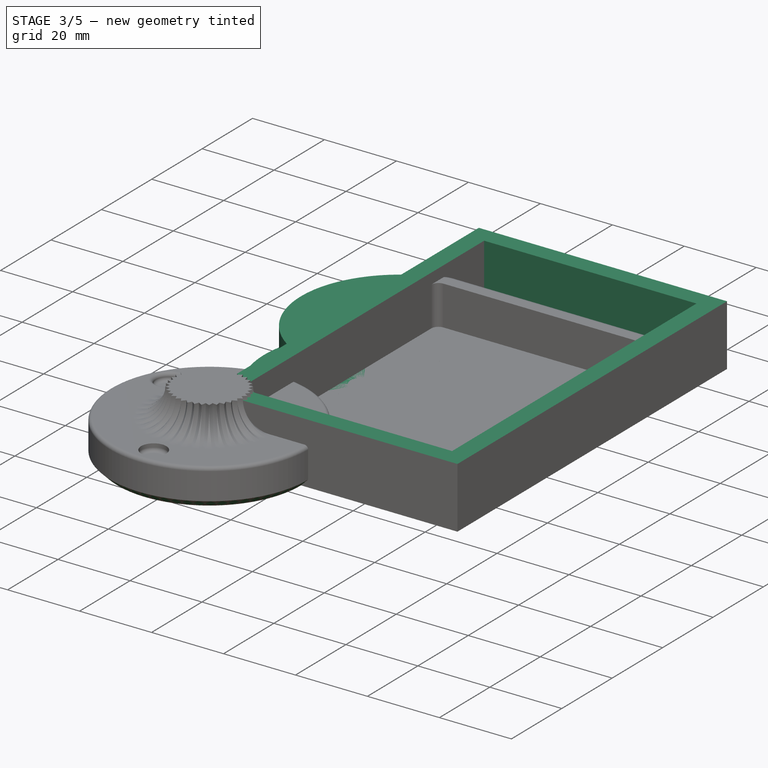
[diagram: stage 3 of 5 — iso view after this stage's code; geometry added in this stage tinted green]
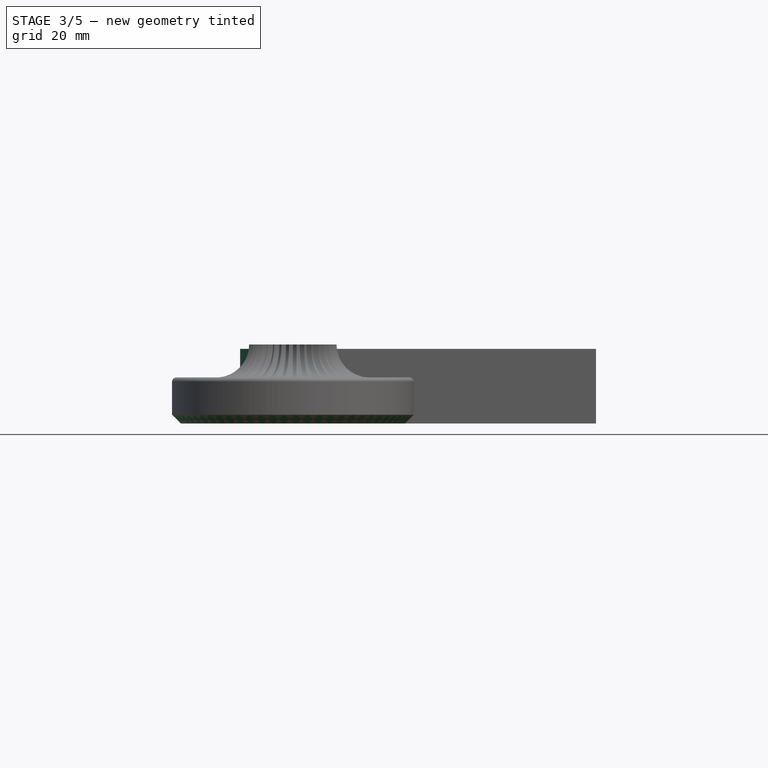
[diagram: stage 3 of 5 — front view after this stage's code; geometry added in this stage tinted green]
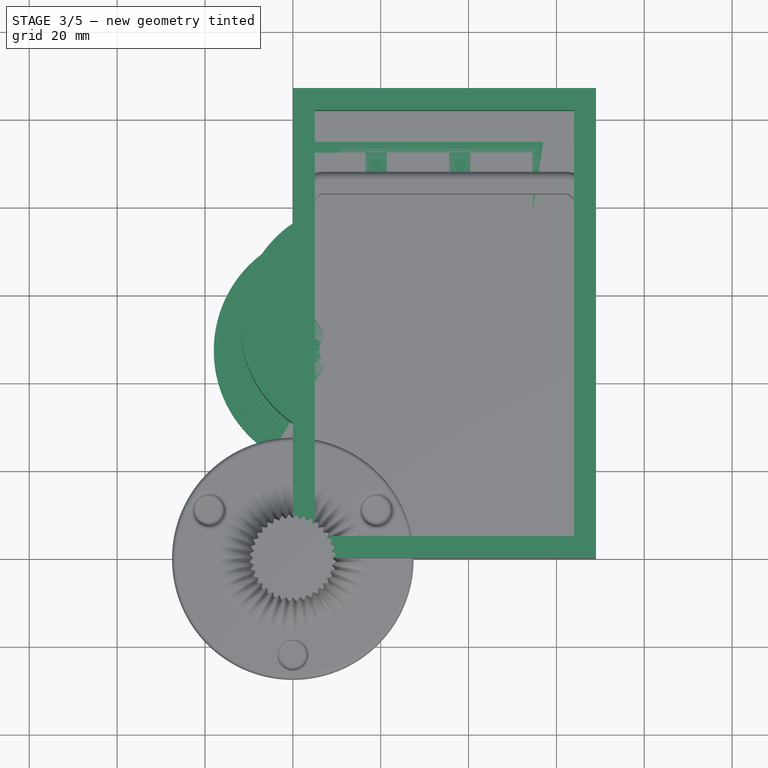
[diagram: stage 3 of 5 — top view after this stage's code; geometry added in this stage tinted green]
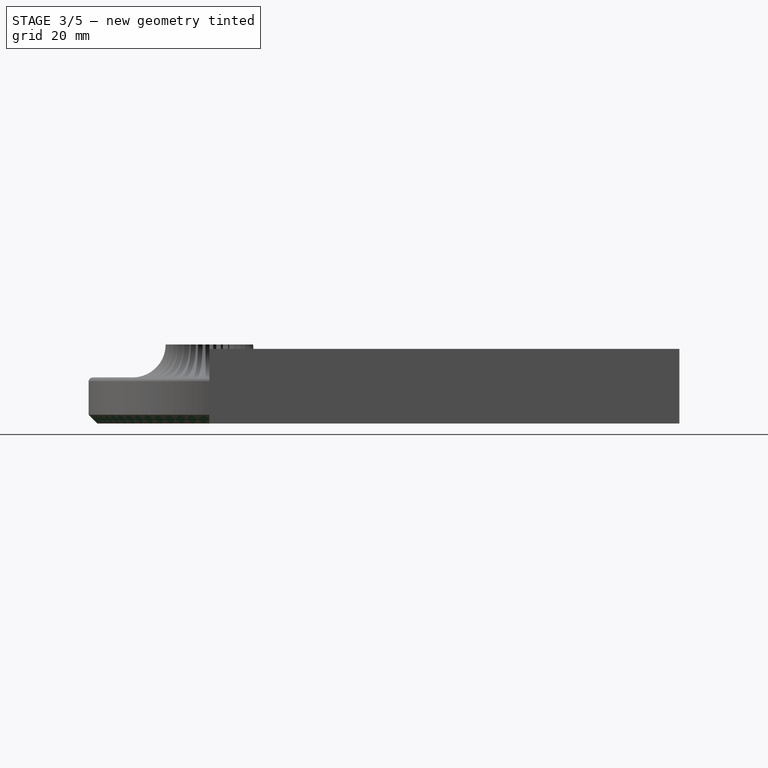
[diagram: stage 3 of 5 — right view after this stage's code; geometry added in this stage tinted green]
FEATURE [Spreadsheet::Sheet] Spreadsheet  label="Dimensions"
  cells = A1=switch_hole; B1(switch_hole)==14.1mm; D1=powerswitch_w; E1(powerswitch_w)==8.5mm; A2=switch; B2(switch)==19mm; D2=powerswitch_l; E2(powerswitch_l)==14mm; A3=gap; B3(gap)==1mm; A4=wall ; B4(wall)==5mm; A5=spacer; B5(spacer)==8mm; A6=screw_hole; B6(screw_hole)==2.6mm; A7=screw_head; B7(screw_head)==5mm; A8=screw_depth; B8(screw_depth)==1mm; A9=thickness; B9(thickness)==3mm; A10=knob; B10(knob)==7mm; A11=feet; B11(feet)==6mm; A12=feet_depth; B12(feet_depth)==1mm; A13=pin_width; B13(pin_width)==1.5mm; A14=pin_height; B14(pin_height)==17.5mm; A15=controller_width; B15(controller_width)==16.5mm; A16=encoder_long; B16(encoder_long)==15mm; A17=encoder_short; B17(encoder_short)==13mm; A18=encoder_depth; B18(encoder_depth)==2mm; A19=case_fillet; B19(case_fillet)==2mm; A20=case_outer; B20(case_outer)==7mm
FEATURE [Sketcher::SketchObject] Sketch002
  FullyConstrained = true
  MapMode = 5
  Support = -> [XY_Plane001]
  expr: Constraints[17] = <<Dimensions>>.switch * 1.5 - 1mm
  expr: Constraints[16] = <<Dimensions>>.gap + <<Dimensions>>.wall + <<Dimensions>>.switch / 2
  expr: Constraints[7] = <<Dimensions>>.switch * 5 + (<<Dimensions>>.gap + <<Dimensions>>.wall) * 2
  expr: Constraints[6] = <<Dimensions>>.switch * 3 + (<<Dimensions>>.gap + <<Dimensions>>.wall) * 2
  sketch-geometry (6):
    g0: LineSegment StartX=-8.9e-15 StartY=0 StartZ=0 EndX=69 EndY=0 EndZ=0
    g1: LineSegment StartX=69 StartY=0 StartZ=0 EndX=69 EndY=107 EndZ=0
    g2: LineSegment StartX=69 StartY=107 StartZ=0 EndX=0 EndY=107 EndZ=0
    g3: LineSegment StartX=-8.9e-15 StartY=0 StartZ=0 EndX=-8.9e-15 EndY=30.7844 EndZ=0
    g4: LineSegment StartX=7.1e-15 StartY=107 StartZ=0 EndX=7.1e-15 EndY=76.2156 EndZ=0
    g5: ArcOfCircle CenterX=15.5 CenterY=53.5 CenterZ=0 NormalX=0 NormalY=0 NormalZ=1 AngleXU=0 Radius=27.5 StartAngle=2.16958 EndAngle=4.11361
  constraints (18):
    c: Coincident(g0,g-1)
    c: Horizontal(g0)
    c: Coincident(g1,g0)
    c: Vertical(g1)
    c: Coincident(g2,g1)
    c: Horizontal(g2)
    c: DistanceX(g0,g0) = 69
    c: DistanceY(g1,g1) = 107
    c: Coincident(g3,g0)
    c: Coincident(g4,g2)
    c: Coincident(g5,g3)
    c: Coincident(g5,g4)
    c: Equal(g4,g3)
    c: Vertical(g4)
    c: Vertical(g3)
    c: Equal(g0,g2)
    c: DistanceX(g0,g5) = 15.5
    c: Radius(g5) = 27.5
FEATURE [PartDesign::Pad] Pad001
  Direction = (1,1,1)
  Length = 17
  Length2 = 100
  Profile = -> Sketch002
  Type = 0
  expr: Length = <<Dimensions>>.thickness * 3 + <<Dimensions>>.spacer
FEATURE [Sketcher::SketchObject] Sketch003
  FullyConstrained = true
  MapMode = 5
  Placement = pos=(0,0,17) rot=(0,0,1;0rad)
  Support = -> [Pad001]
  expr: Constraints[11] = <<Dimensions>>.switch * 5 + <<Dimensions>>.gap * 2
  expr: Constraints[9] = <<Dimensions>>.switch * 3 + <<Dimensions>>.gap * 2
  expr: Constraints[8] = <<Dimensions>>.wall
  expr: Constraints[7] = <<Dimensions>>.wall
  sketch-geometry (4):
    g0: LineSegment StartX=5 StartY=5 StartZ=0 EndX=64 EndY=5 EndZ=0
    g1: LineSegment StartX=64 StartY=5 StartZ=0 EndX=64 EndY=102 EndZ=0
    g2: LineSegment StartX=64 StartY=102 StartZ=0 EndX=5 EndY=102 EndZ=0
    g3: LineSegment StartX=5 StartY=102 StartZ=0 EndX=5 EndY=5 EndZ=0
  constraints (12):
    c: Horizontal(g0)
    c: Vertical(g1)
    c: Horizontal(g2)
    c: Coincident(g3,g2)
    c: Coincident(g3,g0)
    c: Vertical(g3)
    c: Coincident(g0,g1)
    c: DistanceX(g-1,g0) = 5
    c: DistanceY(g-1,g0) = 5
    c: DistanceX(g0,g0) = 59
    c: Coincident(g1,g2)
    c: DistanceY(g1,g1) = 97
FEATURE [PartDesign::Pocket] Pocket001
  BaseFeature = -> Pad001
  Length = 14
  Length2 = 100
  Profile = -> Sketch003
  Type = 0
  expr: Length = <<Dimensions>>.thickness * 2 + <<Dimensions>>.spacer
FEATURE [PartDesign::Body] Body001  label="Case"
  Group = -> [Sketch002,Pad001,Sketch003,Pocket001,Sketch004,Pocket002,Sketch005,Pocket003,Sketch006,Pocket004,Fillet001,Fillet002,Fillet003,Sketch007,Pocket005,Sketch012,Pocket007,Sketch013,Pocket008]
  Origin = -> Origin001
  Tip = -> Pocket008
FEATURE [Sketcher::SketchObject] Sketch014
  FullyConstrained = true
  MapMode = 5
  Support = -> [XY_Plane002]
  expr: Constraints[6] = <<Dimensions001>>.switch * 3
  expr: Constraints[146] = <<Dimensions001>>.knob
  expr: Constraints[141] = <<Dimensions001>>.switch * 2
  expr: Constraints[7] = <<Dimensions001>>.switch * 5
  expr: Constraints[20] = <<Dimensions001>>.switch_hole
  expr: Constraints[185] = <<Dimensions001>>.switch
  expr: Constraints[113] = <<Dimensions001>>.switch / 2
  expr: Constraints[183] = <<Dimensions001>>.switch / 2
  expr: Constraints[168] = <<Dimensions001>>.screw_hole
  expr: Constraints[112] = <<Dimensions001>>.switch / 2
  expr: Constraints[140] = <<Dimensions001>>.switch
  sketch-geometry (75):
    g0: LineSegment StartX=-1.8e-15 StartY=0 StartZ=0 EndX=57 EndY=0 EndZ=0
    g1: LineSegment StartX=57 StartY=0 StartZ=0 EndX=57 EndY=95 EndZ=0
    g2: LineSegment StartX=57 StartY=95 StartZ=0 EndX=9.45e-13 EndY=95 EndZ=0
    g3: LineSegment StartX=16.55 StartY=16.55 StartZ=0 EndX=2.45 EndY=16.55 EndZ=0
    g4: LineSegment StartX=2.45 StartY=16.55 StartZ=0 EndX=2.45 EndY=2.45 EndZ=0
    g5: LineSegment StartX=2.45 StartY=2.45 StartZ=0 EndX=16.55 EndY=2.45 EndZ=0
    g6: LineSegment StartX=16.55 StartY=2.45 StartZ=0 EndX=16.55 EndY=16.55 EndZ=0
    g7: Circle CenterX=9.5 CenterY=9.5 CenterZ=0 NormalX=0 NormalY=0 NormalZ=1 AngleXU=0 Radius=9.97021
    g8: LineSegment StartX=35.55 StartY=16.55 StartZ=0 EndX=21.45 EndY=16.55 EndZ=0
    g9: LineSegment StartX=21.45 StartY=16.55 StartZ=0 EndX=21.45 EndY=2.45 EndZ=0
    g10: LineSegment StartX=21.45 StartY=2.45 StartZ=0 EndX=35.55 EndY=2.45 EndZ=0
    g11: LineSegment StartX=35.55 StartY=2.45 StartZ=0 EndX=35.55 EndY=16.55 EndZ=0
    g12: Circle CenterX=28.5 CenterY=9.5 CenterZ=0 NormalX=0 NormalY=0 NormalZ=1 AngleXU=0 Radius=9.97021
    g13: LineSegment StartX=54.55 StartY=16.55 StartZ=0 EndX=40.45 EndY=16.55 EndZ=0
    g14: LineSegment StartX=40.45 StartY=16.55 StartZ=0 EndX=40.45 EndY=2.45 EndZ=0
    g15: LineSegment StartX=40.45 StartY=2.45 StartZ=0 EndX=54.55 EndY=2.45 EndZ=0
    g16: LineSegment StartX=54.55 StartY=2.45 StartZ=0 EndX=54.55 EndY=16.55 EndZ=0
    g17: Circle CenterX=47.5 CenterY=9.5 CenterZ=0 NormalX=0 NormalY=0 NormalZ=1 AngleXU=0 Radius=9.97021
    g18: LineSegment StartX=54.55 StartY=35.55 StartZ=0 EndX=40.45 EndY=35.55 EndZ=0
    g19: LineSegment StartX=40.45 StartY=35.55 StartZ=0 EndX=40.45 EndY=21.45 EndZ=0
    g20: LineSegment StartX=40.45 StartY=21.45 StartZ=0 EndX=54.55 EndY=21.45 EndZ=0
    g21: LineSegment StartX=54.55 StartY=21.45 StartZ=0 EndX=54.55 EndY=35.55 EndZ=0
    g22: Circle CenterX=47.5 CenterY=28.5 CenterZ=0 NormalX=0 NormalY=0 NormalZ=1 AngleXU=0 Radius=9.97021
    g23: LineSegment StartX=54.55 StartY=73.55 StartZ=0 EndX=40.45 EndY=73.55 EndZ=0
    g24: LineSegment StartX=40.45 StartY=73.55 StartZ=0 EndX=40.45 EndY=59.45 EndZ=0
    g25: LineSegment StartX=40.45 StartY=59.45 StartZ=0 EndX=54.55 EndY=59.45 EndZ=0
    g26: LineSegment StartX=54.55 StartY=59.45 StartZ=0 EndX=54.55 EndY=73.55 EndZ=0
    g27: Circle CenterX=47.5 CenterY=66.5 CenterZ=0 NormalX=0 NormalY=0 NormalZ=1 AngleXU=0 Radius=9.97021
    g28: LineSegment StartX=54.55 StartY=92.55 StartZ=0 EndX=40.45 EndY=92.55 EndZ=0
    g29: LineSegment StartX=40.45 StartY=92.55 StartZ=0 EndX=40.45 EndY=78.45 EndZ=0
    g30: LineSegment StartX=40.45 StartY=78.45 StartZ=0 EndX=54.55 EndY=78.45 EndZ=0
    g31: LineSegment StartX=54.55 StartY=78.45 StartZ=0 EndX=54.55 EndY=92.55 EndZ=0
    g32: Circle CenterX=47.5 CenterY=85.5 CenterZ=0 NormalX=0 NormalY=0 NormalZ=1 AngleXU=0 Radius=9.97021
    g33: LineSegment StartX=35.55 StartY=92.55 StartZ=0 EndX=21.45 EndY=92.55 EndZ=0
    g34: LineSegment StartX=21.45 StartY=92.55 StartZ=0 EndX=21.45 EndY=78.45 EndZ=0
    g35: LineSegment StartX=21.45 StartY=78.45 StartZ=0 EndX=35.55 EndY=78.45 EndZ=0
    g36: LineSegment StartX=35.55 StartY=78.45 StartZ=0 EndX=35.55 EndY=92.55 EndZ=0
    g37: Circle CenterX=28.5 CenterY=85.5 CenterZ=0 NormalX=0 NormalY=0 NormalZ=1 AngleXU=0 Radius=9.97021
    g38: LineSegment StartX=16.55 StartY=92.55 StartZ=0 EndX=2.45 EndY=92.55 EndZ=0
    g39: LineSegment StartX=2.45 StartY=92.55 StartZ=0 EndX=2.45 EndY=78.45 EndZ=0
    g40: LineSegment StartX=2.45 StartY=78.45 StartZ=0 EndX=16.55 EndY=78.45 EndZ=0
    g41: LineSegment StartX=16.55 StartY=78.45 StartZ=0 EndX=16.55 EndY=92.55 EndZ=0
    g42: Circle CenterX=9.5 CenterY=85.5 CenterZ=0 NormalX=0 NormalY=0 NormalZ=1 AngleXU=0 Radius=9.97021
    g43: LineSegment StartX=9.5 StartY=9.5 StartZ=0 EndX=28.5 EndY=9.5 EndZ=0
    g44: LineSegment StartX=28.5 StartY=9.5 StartZ=0 EndX=47.5 EndY=9.5 EndZ=0
    g45: LineSegment StartX=47.5 StartY=9.5 StartZ=0 EndX=47.5 EndY=28.5 EndZ=0
    g46: LineSegment StartX=47.5 StartY=28.5 StartZ=0 EndX=47.5 EndY=66.5 EndZ=0
    g47: LineSegment StartX=47.5 StartY=66.5 StartZ=0 EndX=47.5 EndY=85.5 EndZ=0
    g48: LineSegment StartX=47.5 StartY=85.5 StartZ=0 EndX=28.5 EndY=85.5 EndZ=0
    g49: LineSegment StartX=28.5 StartY=85.5 StartZ=0 EndX=9.5 EndY=85.5 EndZ=0
    g50: LineSegment StartX=9.5 StartY=9.5 StartZ=0 EndX=9.5 EndY=47.5 EndZ=0
    g51: Circle CenterX=9.5 CenterY=47.5 CenterZ=0 NormalX=0 NormalY=0 NormalZ=1 AngleXU=0 Radius=3.5
    g52: LineSegment StartX=9.5 StartY=9.5 StartZ=0 EndX=19 EndY=9.5 EndZ=0
    g53: LineSegment StartX=28.5 StartY=9.5 StartZ=0 EndX=38 EndY=9.5 EndZ=0
    g54: LineSegment StartX=47.5 StartY=9.5 StartZ=0 EndX=47.5 EndY=19 EndZ=0
    g55: LineSegment StartX=47.5 StartY=28.5 StartZ=0 EndX=38 EndY=28.5 EndZ=0
    g56: LineSegment StartX=47.5 StartY=66.5 StartZ=0 EndX=38 EndY=66.5 EndZ=0
    g57: LineSegment StartX=9.5 StartY=85.5 StartZ=0 EndX=19 EndY=85.5 EndZ=0
    g58: LineSegment StartX=28.5 StartY=85.5 StartZ=0 EndX=38 EndY=85.5 EndZ=0
    g59: LineSegment StartX=38 StartY=28.5 StartZ=0 EndX=19 EndY=28.5 EndZ=0
    g60: LineSegment StartX=38 StartY=66.5 StartZ=0 EndX=19 EndY=66.5 EndZ=0
    g61: Circle CenterX=19 CenterY=85.5 CenterZ=0 NormalX=0 NormalY=0 NormalZ=1 AngleXU=0 Radius=1.3
    g62: Circle CenterX=38 CenterY=85.5 CenterZ=0 NormalX=0 NormalY=0 NormalZ=1 AngleXU=0 Radius=1.3
    g63: Circle CenterX=38 CenterY=66.5 CenterZ=0 NormalX=0 NormalY=0 NormalZ=1 AngleXU=0 Radius=1.3
    g64: Circle CenterX=19 CenterY=66.5 CenterZ=0 NormalX=0 NormalY=0 NormalZ=1 AngleXU=0 Radius=1.3
    g65: Circle CenterX=38 CenterY=28.5 CenterZ=0 NormalX=0 NormalY=0 NormalZ=1 AngleXU=0 Radius=1.3
    g66: Circle CenterX=19 CenterY=28.5 CenterZ=0 NormalX=0 NormalY=0 NormalZ=1 AngleXU=0 Radius=1.3
    g67: Circle CenterX=19 CenterY=9.5 CenterZ=0 NormalX=0 NormalY=0 NormalZ=1 AngleXU=0 Radius=1.3
    g68: Circle CenterX=38 CenterY=9.5 CenterZ=0 NormalX=0 NormalY=0 NormalZ=1 AngleXU=0 Radius=1.3
    g69: Circle CenterX=47.5 CenterY=19 CenterZ=0 NormalX=0 NormalY=0 NormalZ=1 AngleXU=0 Radius=1.3
    g70: LineSegment StartX=47.5 StartY=85.5 StartZ=0 EndX=47.5 EndY=76 EndZ=0
    g71: Circle CenterX=47.5 CenterY=76 CenterZ=0 NormalX=0 NormalY=0 NormalZ=1 AngleXU=0 Radius=1.3
    g72: ArcOfCircle CenterX=9.5 CenterY=47.5 CenterZ=0 NormalX=0 NormalY=0 NormalZ=1 AngleXU=0 Radius=27.5 StartAngle=1.92352 EndAngle=4.35967
    g73: LineSegment StartX=-1.8e-15 StartY=21.693 StartZ=0 EndX=-1.8e-15 EndY=0 EndZ=0
    g74: LineSegment StartX=9.45e-13 StartY=73.307 StartZ=0 EndX=9.45e-13 EndY=95 EndZ=0
  constraints (206):
    c: Coincident(g0,g-1)
    c: Vertical(g1)
    c: Horizontal(g2)
    c: Horizontal(g0)
    c: Coincident(g0,g1)
    c: Coincident(g1,g2)
    c: DistanceX(g0,g0) = 57
    c: DistanceY(g1,g1) = 95
    c: Coincident(g3,g4)
    c: Coincident(g4,g5)
    c: Coincident(g5,g6)
    c: Coincident(g6,g3)
    c: Equal(g3,g4)
    c: Equal(g3,g5)
    c: Equal(g3,g6)
    c: PointOnObject(g3,g7)
    c: PointOnObject(g4,g7)
    c: PointOnObject(g5,g7)
    c: PointOnObject(g6,g7)
    c: Horizontal(g3)
    c: DistanceX(g3,g3) = 14.1
    c: Coincident(g8,g9)
    c: Coincident(g9,g10)
    c: Coincident(g10,g11)
    c: Coincident(g11,g8)
    c: Equal(g8,g9)
    c: Equal(g8,g10)
    c: Equal(g8,g11)
    c: PointOnObject(g8,g12)
    c: PointOnObject(g9,g12)
    c: PointOnObject(g10,g12)
    c: PointOnObject(g11,g12)
    c: Horizontal(g8)
    c: Equal(g3,g8)
    c: Coincident(g13,g14)
    c: Coincident(g14,g15)
    c: Coincident(g15,g16)
    c: Coincident(g16,g13)
    c: Equal(g13,g14)
    c: Equal(g13,g15)
    c: Equal(g13,g16)
    c: PointOnObject(g13,g17)
    c: PointOnObject(g14,g17)
    c: PointOnObject(g15,g17)
    c: PointOnObject(g16,g17)
    c: Coincident(g18,g19)
    c: Coincident(g19,g20)
    c: Coincident(g20,g21)
    c: Coincident(g21,g18)
    c: Equal(g18,g19)
    c: Equal(g18,g20)
    c: Equal(g18,g21)
    c: PointOnObject(g18,g22)
    c: PointOnObject(g19,g22)
    c: PointOnObject(g20,g22)
    c: PointOnObject(g21,g22)
    c: Coincident(g23,g24)
    c: Coincident(g24,g25)
    c: Coincident(g25,g26)
    c: Coincident(g26,g23)
    c: Equal(g23,g24)
    c: Equal(g23,g25)
    c: Equal(g23,g26)
    c: PointOnObject(g23,g27)
    c: PointOnObject(g24,g27)
    c: PointOnObject(g25,g27)
    c: PointOnObject(g26,g27)
    c: Coincident(g28,g29)
    c: Coincident(g29,g30)
    c: Coincident(g30,g31)
    c: Coincident(g31,g28)
    c: Equal(g28,g29)
    c: Equal(g28,g30)
    c: Equal(g28,g31)
    c: PointOnObject(g28,g32)
    c: PointOnObject(g29,g32)
    c: PointOnObject(g30,g32)
    c: PointOnObject(g31,g32)
    c: Coincident(g33,g34)
    c: Coincident(g34,g35)
    c: Coincident(g35,g36)
    c: Coincident(g36,g33)
    c: Equal(g33,g34)
    c: Equal(g33,g35)
    c: Equal(g33,g36)
    c: PointOnObject(g33,g37)
    c: PointOnObject(g34,g37)
    c: PointOnObject(g35,g37)
    c: PointOnObject(g36,g37)
    c: Coincident(g38,g39)
    c: Coincident(g39,g40)
    c: Coincident(g40,g41)
    c: Coincident(g41,g38)
    c: Equal(g38,g39)
    c: Equal(g38,g40)
    c: Equal(g38,g41)
    c: PointOnObject(g38,g42)
    c: PointOnObject(g39,g42)
    c: PointOnObject(g40,g42)
    c: PointOnObject(g41,g42)
    c: Equal(g13,g3)
    c: Equal(g3,g18)
    c: Equal(g18,g23)
    c: Equal(g23,g28)
    c: Equal(g28,g33)
    c: Equal(g33,g38)
    c: Horizontal(g38)
    c: Horizontal(g33)
    c: Horizontal(g28)
    c: Horizontal(g23)
    c: Horizontal(g18)
    c: Horizontal(g13)
    c: DistanceX(g0,g7) = 9.5
    c: DistanceY(g0,g7) = 9.5
    c: Coincident(g43,g7)
    c: Coincident(g43,g12)
    c: Coincident(g44,g12)
    c: Coincident(g44,g17)
    c: Coincident(g45,g22)
    c: Coincident(g46,g22)
    c: Coincident(g46,g27)
    c: Coincident(g47,g27)
    c: Coincident(g47,g32)
    c: Coincident(g48,g32)
    c: Coincident(g48,g37)
    c: Coincident(g49,g42)
    c: Horizontal(g49)
    c: Horizontal(g48)
    c: Coincident(g37,g49)
    c: Vertical(g47)
    c: Vertical(g46)
    c: Vertical(g45)
    c: Coincident(g45,g17)
    c: Horizontal(g44)
    c: Horizontal(g43)
    c: Equal(g44,g43)
    c: Equal(g43,g45)
    c: Equal(g45,g47)
    c: Equal(g47,g48)
    c: Equal(g48,g49)
    c: DistanceX(g43,g43) = 19
    c: DistanceY(g46,g46) = 38
    c: Coincident(g50,g7)
    c: Vertical(g50)
    c: Equal(g50,g46)
    c: Coincident(g51,g50)
    c: Diameter(g51) = 7
    c: Coincident(g52,g7)
    c: Coincident(g53,g12)
    c: Coincident(g54,g17)
    c: Coincident(g55,g22)
    c: Horizontal(g55)
    c: Coincident(g56,g27)
    c: Coincident(g57,g42)
    c: Coincident(g58,g37)
    c: Coincident(g59,g55)
    c: Horizontal(g59)
    c: Coincident(g60,g56)
    c: Horizontal(g60)
    c: Coincident(g61,g57)
    c: Coincident(g62,g58)
    c: Coincident(g63,g56)
    c: Coincident(g64,g60)
    c: Coincident(g65,g55)
    c: Coincident(g66,g59)
    c: Coincident(g67,g52)
    c: Coincident(g68,g53)
    c: Coincident(g69,g54)
    c: Diameter(g67) = 2.6
    c: Equal(g67,g68)
    c: Equal(g68,g66)
    c: Equal(g66,g65)
    c: Equal(g65,g69)
    c: Equal(g69,g63)
    c: Equal(g63,g64)
    c: Equal(g64,g61)
    c: Equal(g61,g62)
    c: Equal(g52,g53)
    c: Equal(g53,g54)
    c: Equal(g54,g55)
    c: Equal(g55,g56)
    c: Equal(g56,g58)
    c: Equal(g58,g57)
    c: DistanceX(g55,g55) = 9.5
    c: Equal(g59,g60)
    c: DistanceX(g59,g59) = 19
    c: Horizontal(g52)
    c: Horizontal(g53)
    c: Vertical(g54)
    c: Horizontal(g56)
    c: Horizontal(g58)
    c: Horizontal(g57)
    c: Coincident(g70,g32)
    c: Coincident(g71,g70)
    c: Equal(g65,g71)
    c: Equal(g70,g56)
    c: Vertical(g70)
    c: Coincident(g72,g51)
    c: Radius(g72) = 27.5
    c: Coincident(g73,g72)
    c: Coincident(g73,g0)
    c: Vertical(g73)
    c: Coincident(g74,g72)
    c: Coincident(g74,g2)
    c: Vertical(g74)
    c: Equal(g0,g2)
FEATURE [PartDesign::Pad] Pad004
  Direction = (1,1,1)
  Length = 3
  Length2 = 100
  Profile = -> Sketch014
  Type = 0
FEATURE [Sketcher::SketchObject] Sketch015
  ExternalGeometry = -> [Pad004]
  FullyConstrained = true
  MapMode = 5
  Placement = pos=(0,0,3) rot=(0,0,1;0rad)
  Support = -> [Pad004]
  expr: Constraints[19] = <<Dimensions>>.screw_head
  sketch-geometry (10):
    g0: Circle CenterX=19 CenterY=28.5 CenterZ=0 NormalX=0 NormalY=0 NormalZ=1 AngleXU=0 Radius=2.5
    g1: Circle CenterX=38 CenterY=28.5 CenterZ=0 NormalX=0 NormalY=0 NormalZ=1 AngleXU=0 Radius=2.5
    g2: Circle CenterX=47.5 CenterY=19 CenterZ=0 NormalX=0 NormalY=0 NormalZ=1 AngleXU=0 Radius=2.5
    g3: Circle CenterX=38 CenterY=9.5 CenterZ=0 NormalX=0 NormalY=0 NormalZ=1 AngleXU=0 Radius=2.5
    g4: Circle CenterX=19 CenterY=9.5 CenterZ=0 NormalX=0 NormalY=0 NormalZ=1 AngleXU=0 Radius=2.5
    g5: Circle CenterX=19 CenterY=66.5 CenterZ=0 NormalX=0 NormalY=0 NormalZ=1 AngleXU=0 Radius=2.5
    g6: Circle CenterX=38 CenterY=85.5 CenterZ=0 NormalX=0 NormalY=0 NormalZ=1 AngleXU=0 Radius=2.5
    g7: Circle CenterX=38 CenterY=66.5 CenterZ=0 NormalX=0 NormalY=0 NormalZ=1 AngleXU=0 Radius=2.5
    g8: Circle CenterX=47.5 CenterY=76 CenterZ=0 NormalX=0 NormalY=0 NormalZ=1 AngleXU=0 Radius=2.5
    g9: Circle CenterX=19 CenterY=85.5 CenterZ=0 NormalX=0 NormalY=0 NormalZ=1 AngleXU=0 Radius=2.5
  constraints (20):
    c: Coincident(g0,g-7)
    c: Coincident(g1,g-6)
    c: Coincident(g2,g-5)
    c: Coincident(g3,g-4)
    c: Coincident(g4,g-3)
    c: Coincident(g5,g-8)
    c: Coincident(g6,g-9)
    c: Coincident(g7,g-10)
    c: Coincident(g8,g-11)
    c: Coincident(g9,g-12)
    c: Equal(g0,g1)
    c: Equal(g1,g2)
    c: Equal(g2,g3)
    c: Equal(g3,g4)
    c: Equal(g4,g5)
    c: Equal(g5,g6)
    c: Equal(g6,g7)
    c: Equal(g7,g8)
    c: Equal(g8,g9)
    c: Diameter(g9) = 5
FEATURE [PartDesign::Pocket] Pocket009
  BaseFeature = -> Pad004
  Length = 1
  Length2 = 100
  Profile = -> Sketch015
  Type = 0
FEATURE [Sketcher::SketchObject] Sketch016
  ExternalGeometry = -> [Pocket009]
  FullyConstrained = true
  MapMode = 5
  Placement = pos=(0,0,0) rot=(1,0,0;3.14159rad)
  Support = -> [Pocket009]
  sketch-geometry (5):
    g0: LineSegment StartX=3 StartY=-40 StartZ=0 EndX=3 EndY=-55 EndZ=0
    g1: LineSegment StartX=3 StartY=-55 StartZ=0 EndX=16 EndY=-55 EndZ=0
    g2: LineSegment StartX=16 StartY=-55 StartZ=0 EndX=16 EndY=-40 EndZ=0
    g3: LineSegment StartX=16 StartY=-40 StartZ=0 EndX=3 EndY=-40 EndZ=0
    g4: Circle CenterX=9.5 CenterY=-47.5 CenterZ=0 NormalX=0 NormalY=0 NormalZ=1 AngleXU=0 Radius=9.92472
  constraints (14):
    c: Coincident(g0,g1)
    c: Coincident(g1,g2)
    c: Coincident(g2,g3)
    c: Coincident(g3,g0)
    c: PointOnObject(g0,g4)
    c: PointOnObject(g1,g4)
    c: PointOnObject(g2,g4)
    c: PointOnObject(g3,g4)
    c: Coincident(g4,g-3)
    c: Vertical(g0)
    c: Equal(g0,g2)
    c: Equal(g3,g1)
    c: DistanceX(g3,g3) = 13
    c: DistanceY(g2,g2) = 15
FEATURE [PartDesign::Pocket] Pocket010
  BaseFeature = -> Pocket009
  Length = 2
  Length2 = 100
  Profile = -> Sketch016
  Type = 0
FEATURE [PartDesign::Fillet] Fillet004
  Base = -> PolarPattern001 [Edge200,Edge10,Edge86,Edge83,Edge198,Edge8]
  BaseFeature = -> PolarPattern001
  Placement = pos=(0,0,0) rot=(1,0,0;1.5708rad)
  Radius = 0.99
  SupportTransform = false
FEATURE [PartDesign::Chamfer] Chamfer
  Angle = 45
  Base = -> Fillet004 [Edge3]
  BaseFeature = -> Fillet004
  ChamferType = 0
  FlipDirection = false
  Placement = pos=(0,0,0) rot=(1,0,0;1.5708rad)
  Size = 2
  Size2 = 1
  SupportTransform = false
FEATURE [PartDesign::Chamfer] Chamfer001
  Angle = 45
  Base = -> Chamfer [Edge214,Edge8]
  BaseFeature = -> Chamfer
  ChamferType = 0
  FlipDirection = false
  Placement = pos=(0,0,0) rot=(1,0,0;1.5708rad)
  Size = 1
  Size2 = 1
  SupportTransform = false
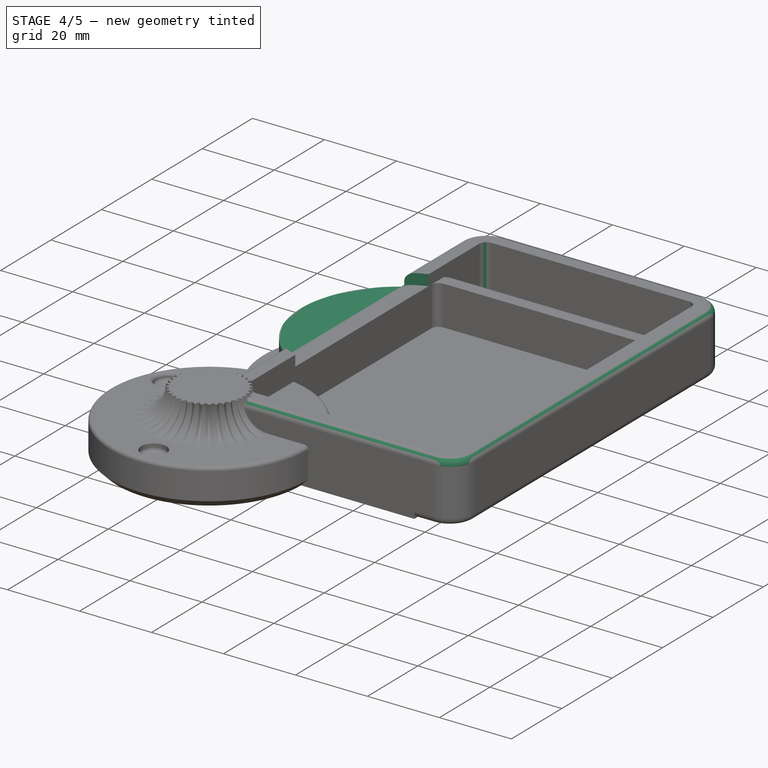
[diagram: stage 4 of 5 — iso view after this stage's code; geometry added in this stage tinted green]
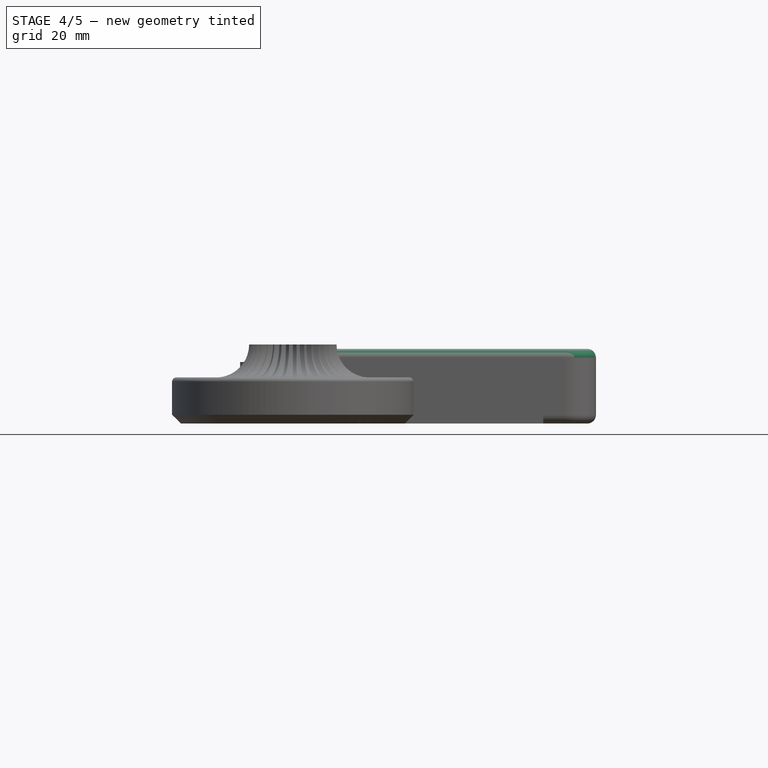
[diagram: stage 4 of 5 — front view after this stage's code; geometry added in this stage tinted green]
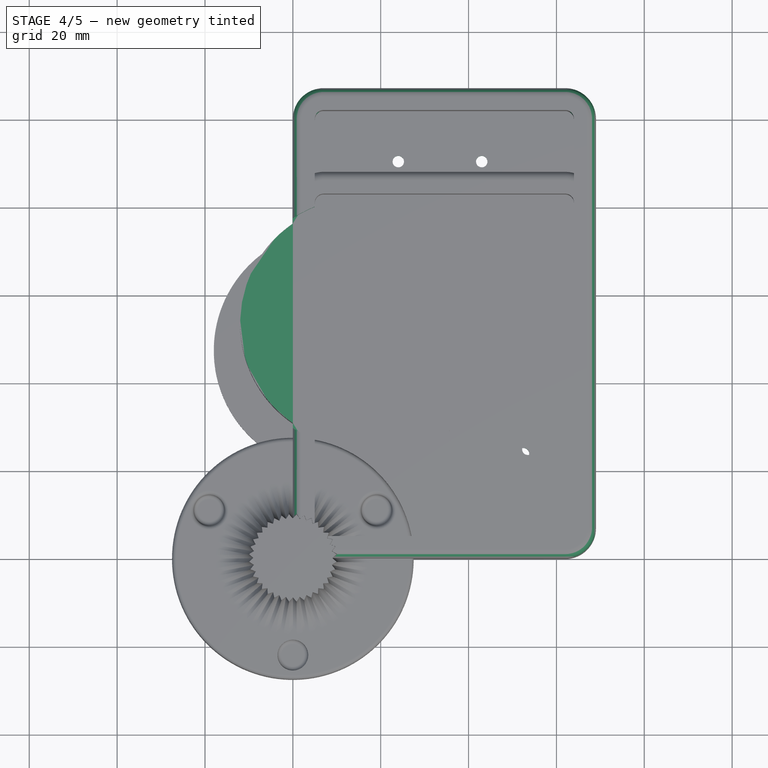
[diagram: stage 4 of 5 — top view after this stage's code; geometry added in this stage tinted green]
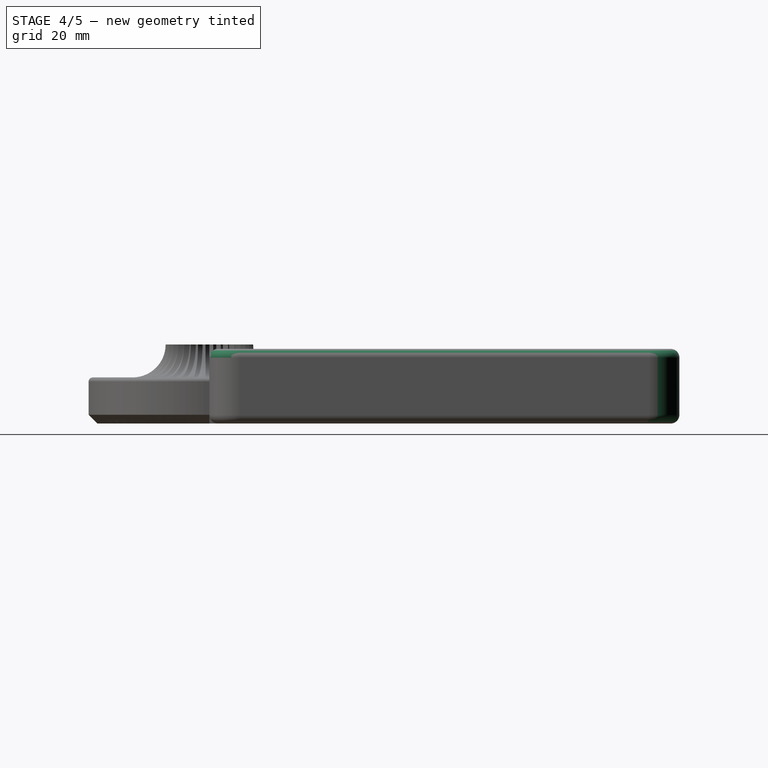
[diagram: stage 4 of 5 — right view after this stage's code; geometry added in this stage tinted green]
FEATURE [Sketcher::SketchObject] Sketch004
  ExternalGeometry = -> [Pocket001]
  FullyConstrained = true
  MapMode = 5
  Placement = pos=(0,0,0) rot=(1,0,0;3.14159rad)
  Support = -> [Pocket001]
  expr: Constraints[53] = <<Dimensions>>.switch * 1.5 - 1mm - 3mm - 2.5mm
  expr: Constraints[25] = <<Dimensions>>.feet
  expr: Constraints[23] = 2mm + <<Dimensions>>.gap + <<Dimensions>>.feet / 2
  sketch-geometry (25):
    g0: LineSegment StartX=0 StartY=0 StartZ=0 EndX=6 EndY=0 EndZ=0
    g1: LineSegment StartX=6 StartY=0 StartZ=0 EndX=6 EndY=-6 EndZ=0
    g2: LineSegment StartX=69 StartY=0 StartZ=0 EndX=63 EndY=0 EndZ=0
    g3: LineSegment StartX=63 StartY=0 StartZ=0 EndX=63 EndY=-6 EndZ=0
    g4: LineSegment StartX=69 StartY=-107 StartZ=0 EndX=63 EndY=-107 EndZ=0
    g5: LineSegment StartX=63 StartY=-107 StartZ=0 EndX=63 EndY=-101 EndZ=0
    g6: LineSegment StartX=0 StartY=-107 StartZ=0 EndX=6 EndY=-107 EndZ=0
    g7: LineSegment StartX=6 StartY=-107 StartZ=0 EndX=6 EndY=-101 EndZ=0
    g8: Circle CenterX=6 CenterY=-6 CenterZ=0 NormalX=0 NormalY=0 NormalZ=1 AngleXU=0 Radius=3
    g9: Circle CenterX=63 CenterY=-6 CenterZ=0 NormalX=0 NormalY=0 NormalZ=1 AngleXU=0 Radius=3
    g10: Circle CenterX=6 CenterY=-101 CenterZ=0 NormalX=0 NormalY=0 NormalZ=1 AngleXU=0 Radius=3
    g11: Circle CenterX=63 CenterY=-101 CenterZ=0 NormalX=0 NormalY=0 NormalZ=1 AngleXU=0 Radius=3
    g12: LineSegment StartX=6 StartY=-101 StartZ=0 EndX=6 EndY=-69.3333 EndZ=0
    g13: LineSegment StartX=6 StartY=-69.3333 StartZ=0 EndX=6 EndY=-37.6667 EndZ=0
    g14: LineSegment StartX=6 StartY=-37.6667 StartZ=0 EndX=6 EndY=-6 EndZ=0
    g15: LineSegment StartX=63 StartY=-6 StartZ=0 EndX=63 EndY=-37.6667 EndZ=0
    g16: LineSegment StartX=63 StartY=-37.6667 StartZ=0 EndX=63 EndY=-69.3333 EndZ=0
    g17: LineSegment StartX=63 StartY=-69.3333 StartZ=0 EndX=63 EndY=-101 EndZ=0
    g18: Circle CenterX=6 CenterY=-37.6667 CenterZ=0 NormalX=0 NormalY=0 NormalZ=1 AngleXU=0 Radius=3
    g19: Circle CenterX=6 CenterY=-69.3333 CenterZ=0 NormalX=0 NormalY=0 NormalZ=1 AngleXU=0 Radius=3
    g20: Circle CenterX=63 CenterY=-37.6667 CenterZ=0 NormalX=0 NormalY=0 NormalZ=1 AngleXU=0 Radius=3
    g21: Circle CenterX=63 CenterY=-69.3333 CenterZ=0 NormalX=0 NormalY=0 NormalZ=1 AngleXU=0 Radius=3
    g22: LineSegment StartX=6 StartY=-69.3333 StartZ=0 EndX=-6.5 EndY=-53.5 EndZ=0
    g23: LineSegment StartX=-6.5 StartY=-53.5 StartZ=0 EndX=6 EndY=-37.6667 EndZ=0
    g24: Circle CenterX=-6.5 CenterY=-53.5 CenterZ=0 NormalX=0 NormalY=0 NormalZ=1 AngleXU=0 Radius=3
  constraints (63):
    c: Coincident(g0,g-1)
    c: Coincident(g1,g0)
    c: Vertical(g1)
    c: Coincident(g2,g-4)
    c: Vertical(g3)
    c: Coincident(g4,g-4)
    c: Vertical(g5)
    c: Coincident(g6,g-3)
    c: Vertical(g7)
    c: Horizontal(g4)
    c: Horizontal(g6)
    c: Horizontal(g2)
    c: Horizontal(g0)
    c: Equal(g0,g1)
    c: Equal(g1,g3)
    c: Equal(g3,g2)
    c: Equal(g2,g4)
    c: Equal(g4,g5)
    c: Equal(g5,g7)
    c: Equal(g7,g6)
    c: Coincident(g4,g5)
    c: Coincident(g6,g7)
    c: Coincident(g2,g3)
    c: DistanceX(g0,g0) = 6
    c: Coincident(g8,g1)
    c: Diameter(g8) = 6
    c: Coincident(g9,g3)
    c: Coincident(g10,g7)
    c: Coincident(g11,g5)
    c: Vertical(g12)
    c: Coincident(g10,g12)
    c: Coincident(g13,g12)
    c: Coincident(g14,g13)
    c: Coincident(g14,g8)
    c: Coincident(g15,g9)
    c: Vertical(g15)
    c: Coincident(g16,g15)
    c: Vertical(g16)
    c: Coincident(g17,g16)
    c: Coincident(g17,g11)
    c: Vertical(g13)
    c: Equal(g15,g14)
    c: Equal(g14,g13)
    c: Equal(g13,g16)
    c: Equal(g16,g17)
    c: Coincident(g18,g13)
    c: Coincident(g19,g12)
    c: Coincident(g20,g15)
    c: Coincident(g21,g16)
    c: Coincident(g22,g19)
    c: Coincident(g23,g22)
    c: Coincident(g23,g18)
    c: Horizontal(g22,g-5)
    c: DistanceX(g22,g-5) = 22
    c: Coincident(g24,g22)
    c: Equal(g20,g21)
    c: Equal(g21,g11)
    c: Equal(g11,g10)
    c: Equal(g10,g19)
    c: Equal(g19,g24)
    c: Equal(g24,g18)
    c: Equal(g18,g9)
    c: Equal(g9,g8)
FEATURE [PartDesign::Pocket] Pocket002
  BaseFeature = -> Pocket001
  Length = 1
  Length2 = 100
  Profile = -> Sketch004
  Type = 0
FEATURE [Sketcher::SketchObject] Sketch005
  ExternalGeometry = -> [Pocket002]
  FullyConstrained = true
  MapMode = 5
  Placement = pos=(0,0,3) rot=(0,0,1;0rad)
  Support = -> [Pocket002]
  expr: Constraints[63] = <<Dimensions>>.screw_hole
  expr: Constraints[5] = <<Dimensions>>.switch / 2
  expr: Constraints[26] = <<Dimensions>>.switch * 3
  expr: Constraints[4] = <<Dimensions>>.switch
  sketch-geometry (25):
    g0: LineSegment StartX=5 StartY=5 StartZ=0 EndX=24 EndY=5 EndZ=0
    g1: LineSegment StartX=24 StartY=5 StartZ=0 EndX=24 EndY=14.5 EndZ=0
    g2: LineSegment StartX=24 StartY=14.5 StartZ=0 EndX=43 EndY=14.5 EndZ=0
    g3: LineSegment StartX=43 StartY=14.5 StartZ=0 EndX=52.5 EndY=14.5 EndZ=0
    g4: LineSegment StartX=52.5 StartY=14.5 StartZ=0 EndX=52.5 EndY=24 EndZ=0
    g5: LineSegment StartX=52.5 StartY=24 StartZ=0 EndX=52.5 EndY=81 EndZ=0
    g6: LineSegment StartX=52.5 StartY=81 StartZ=0 EndX=52.5 EndY=90.5 EndZ=0
    g7: LineSegment StartX=52.5 StartY=90.5 StartZ=0 EndX=43 EndY=90.5 EndZ=0
    g8: LineSegment StartX=43 StartY=90.5 StartZ=0 EndX=24 EndY=90.5 EndZ=0
    g9: LineSegment StartX=43 StartY=14.5 StartZ=0 EndX=43 EndY=33.5 EndZ=0
    g10: LineSegment StartX=24 StartY=14.5 StartZ=0 EndX=24 EndY=33.5 EndZ=0
    g11: LineSegment StartX=24 StartY=90.5 StartZ=0 EndX=24.0001 EndY=71.5 EndZ=0
    g12: LineSegment StartX=43 StartY=90.5 StartZ=0 EndX=43 EndY=71.5 EndZ=0
    g13: LineSegment StartX=24.0001 StartY=71.5 StartZ=0 EndX=24.0001 EndY=52.5 EndZ=0
    g14: LineSegment StartX=24.0001 StartY=52.5 StartZ=0 EndX=24 EndY=33.5 EndZ=0
    g15: Circle CenterX=24 CenterY=14.5 CenterZ=0 NormalX=0 NormalY=0 NormalZ=1 AngleXU=0 Radius=1.3
    g16: Circle CenterX=43 CenterY=14.5 CenterZ=0 NormalX=0 NormalY=0 NormalZ=1 AngleXU=0 Radius=1.3
    g17: Circle CenterX=52.5 CenterY=24 CenterZ=0 NormalX=0 NormalY=0 NormalZ=1 AngleXU=0 Radius=1.3
    g18: Circle CenterX=43 CenterY=33.5 CenterZ=0 NormalX=0 NormalY=0 NormalZ=1 AngleXU=0 Radius=1.3
    g19: Circle CenterX=24 CenterY=33.5 CenterZ=0 NormalX=0 NormalY=0 NormalZ=1 AngleXU=0 Radius=1.3
    g20: Circle CenterX=24.0001 CenterY=71.5 CenterZ=0 NormalX=0 NormalY=0 NormalZ=1 AngleXU=0 Radius=1.3
    g21: Circle CenterX=43 CenterY=71.5 CenterZ=0 NormalX=0 NormalY=0 NormalZ=1 AngleXU=0 Radius=1.3
    g22: Circle CenterX=43 CenterY=90.5 CenterZ=0 NormalX=0 NormalY=0 NormalZ=1 AngleXU=0 Radius=1.3
    g23: Circle CenterX=24 CenterY=90.5 CenterZ=0 NormalX=0 NormalY=0 NormalZ=1 AngleXU=0 Radius=1.3
    g24: Circle CenterX=52.5 CenterY=81 CenterZ=0 NormalX=0 NormalY=0 NormalZ=1 AngleXU=0 Radius=1.3
  constraints (64):
    c: Coincident(g0,g-3)
    c: Horizontal(g0)
    c: Coincident(g1,g0)
    c: Vertical(g1)
    c: DistanceX(g0,g0) = 19
    c: DistanceY(g1,g1) = 9.5
    c: Coincident(g2,g1)
    c: Horizontal(g2)
    c: Coincident(g3,g2)
    c: Horizontal(g3)
    c: Vertical(g4)
    c: Coincident(g5,g4)
    c: Vertical(g5)
    c: Coincident(g6,g5)
    c: Vertical(g6)
    c: Horizontal(g7)
    c: Horizontal(g8)
    c: Equal(g0,g2)
    c: Equal(g2,g8)
    c: Coincident(g8,g7)
    c: Equal(g6,g7)
    c: Equal(g7,g4)
    c: Equal(g4,g3)
    c: Equal(g3,g1)
    c: Coincident(g4,g3)
    c: Coincident(g6,g7)
    c: DistanceY(g5,g5) = 57
    c: Coincident(g9,g2)
    c: Coincident(g10,g1)
    c: Vertical(g10)
    c: Coincident(g11,g8)
    c: Coincident(g12,g7)
    c: Coincident(g13,g11)
    c: Vertical(g13)
    c: Coincident(g14,g13)
    c: Coincident(g14,g10)
    c: Equal(g11,g12)
    c: Equal(g12,g13)
    c: Equal(g13,g14)
    c: Equal(g14,g9)
    c: Equal(g9,g10)
    c: Equal(g10,g0)
    c: Vertical(g9)
    c: Vertical(g12)
    c: Coincident(g15,g1)
    c: Coincident(g16,g2)
    c: Coincident(g17,g4)
    c: Coincident(g18,g9)
    c: Coincident(g19,g10)
    c: Coincident(g20,g11)
    c: Coincident(g21,g12)
    c: Coincident(g22,g7)
    c: Coincident(g23,g8)
    c: Coincident(g24,g5)
    c: Equal(g15,g19)
    c: Equal(g19,g18)
    c: Equal(g18,g16)
    c: Equal(g16,g17)
    c: Equal(g17,g24)
    c: Equal(g24,g21)
    c: Equal(g21,g22)
    c: Equal(g22,g23)
    c: Equal(g23,g20)
    c: Diameter(g15) = 2.6
FEATURE [PartDesign::Pocket] Pocket003
  BaseFeature = -> Pocket002
  Length = 3
  Length2 = 100
  Profile = -> Sketch005
  Type = 0
FEATURE [Sketcher::SketchObject] Sketch006
  ExternalGeometry = -> [Pocket003]
  FullyConstrained = true
  MapMode = 5
  Placement = pos=(0,0,0) rot=(1,0,0;3.14159rad)
  Support = -> [Pocket003]
  expr: Constraints[10] = <<Dimensions>>.screw_head
  sketch-geometry (10):
    g0: Circle CenterX=24 CenterY=-14.5 CenterZ=0 NormalX=0 NormalY=0 NormalZ=1 AngleXU=0 Radius=2.5
    g1: Circle CenterX=43 CenterY=-14.5 CenterZ=0 NormalX=0 NormalY=0 NormalZ=1 AngleXU=0 Radius=2.5
    g2: Circle CenterX=52.5 CenterY=-24 CenterZ=0 NormalX=0 NormalY=0 NormalZ=1 AngleXU=0 Radius=2.5
    g3: Circle CenterX=43 CenterY=-33.5 CenterZ=0 NormalX=0 NormalY=0 NormalZ=1 AngleXU=0 Radius=2.5
    g4: Circle CenterX=24 CenterY=-33.5 CenterZ=0 NormalX=0 NormalY=0 NormalZ=1 AngleXU=0 Radius=2.5
    g5: Circle CenterX=52.5 CenterY=-81 CenterZ=0 NormalX=0 NormalY=0 NormalZ=1 AngleXU=0 Radius=2.5
    g6: Circle CenterX=43 CenterY=-71.5 CenterZ=0 NormalX=0 NormalY=0 NormalZ=1 AngleXU=0 Radius=2.5
    g7: Circle CenterX=24.0001 CenterY=-71.5 CenterZ=0 NormalX=0 NormalY=0 NormalZ=1 AngleXU=0 Radius=2.5
    g8: Circle CenterX=24 CenterY=-90.5 CenterZ=0 NormalX=0 NormalY=0 NormalZ=1 AngleXU=0 Radius=2.5
    g9: Circle CenterX=43 CenterY=-90.5 CenterZ=0 NormalX=0 NormalY=0 NormalZ=1 AngleXU=0 Radius=2.5
  constraints (20):
    c: Coincident(g0,g-3)
    c: Coincident(g1,g-4)
    c: Coincident(g3,g-6)
    c: Coincident(g4,g-7)
    c: Coincident(g5,g-8)
    c: Coincident(g6,g-9)
    c: Equal(g6,g5)
    c: Equal(g4,g3)
    c: Equal(g3,g2)
    c: Equal(g2,g1)
    c: Diameter(g6) = 5
    c: Coincident(g-5,g2)
    c: Coincident(g7,g-10)
    c: Coincident(g8,g-11)
    c: Coincident(g9,g-12)
    c: Equal(g7,g8)
    c: Equal(g8,g9)
    c: Equal(g9,g6)
    c: Equal(g6,g4)
    c: Equal(g4,g0)
FEATURE [PartDesign::Pocket] Pocket004
  BaseFeature = -> Pocket003
  Length = 1
  Length2 = 100
  Profile = -> Sketch006
  Type = 0
FEATURE [PartDesign::Fillet] Fillet001
  Base = -> Pocket004 [Edge2,Edge1,Edge8,Edge41]
  BaseFeature = -> Pocket004
  Radius = 7
  SupportTransform = false
FEATURE [PartDesign::Fillet] Fillet002
  Base = -> Fillet001 [Edge95,Edge93,Edge92,Edge97]
  BaseFeature = -> Fillet001
  Radius = 2
  SupportTransform = false
FEATURE [PartDesign::Fillet] Fillet003
  Base = -> Fillet002 [Edge35,Edge47,Edge12]
  BaseFeature = -> Fillet002
  Radius = 2
  SupportTransform = false
FEATURE [Sketcher::SketchObject] Sketch007
  ExternalGeometry = -> [Fillet003]
  FullyConstrained = true
  MapMode = 5
  Placement = pos=(0,0,17) rot=(0,0,1;0rad)
  Support = -> [Fillet003]
  sketch-geometry (1):
    g0: Circle CenterX=15.5 CenterY=53.5 CenterZ=0 NormalX=0 NormalY=0 NormalZ=1 AngleXU=0 Radius=28.5
  constraints (2):
    c: Coincident(g0,g-3)
    c: Radius(g0) = 28.5
FEATURE [PartDesign::Pocket] Pocket005
  BaseFeature = -> Fillet003
  Length = 3
  Length2 = 100
  Profile = -> Sketch007
  Type = 0
  expr: Length = <<Dimensions>>.thickness
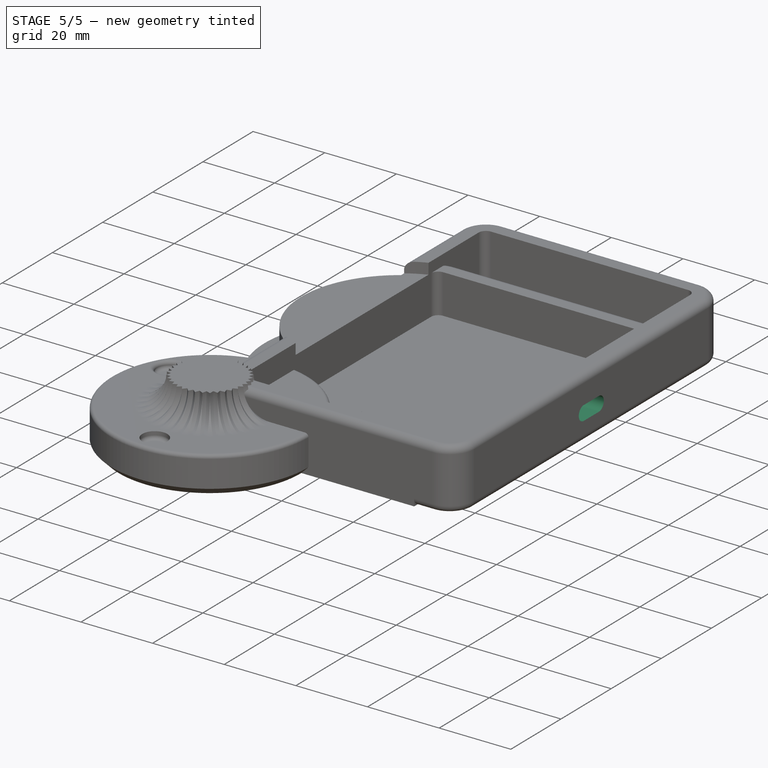
[diagram: stage 5 of 5 — iso view after this stage's code; geometry added in this stage tinted green]
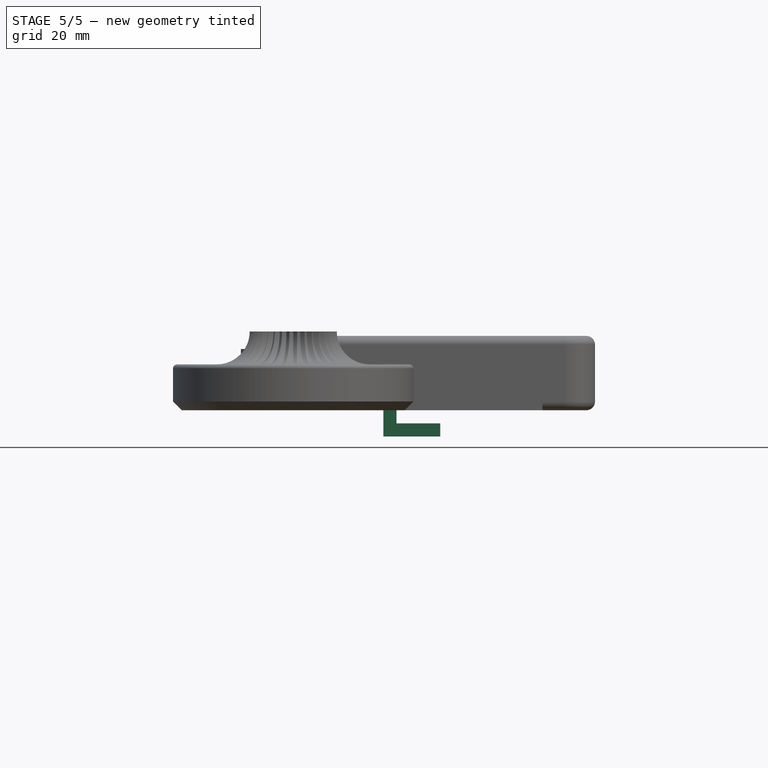
[diagram: stage 5 of 5 — front view after this stage's code; geometry added in this stage tinted green]
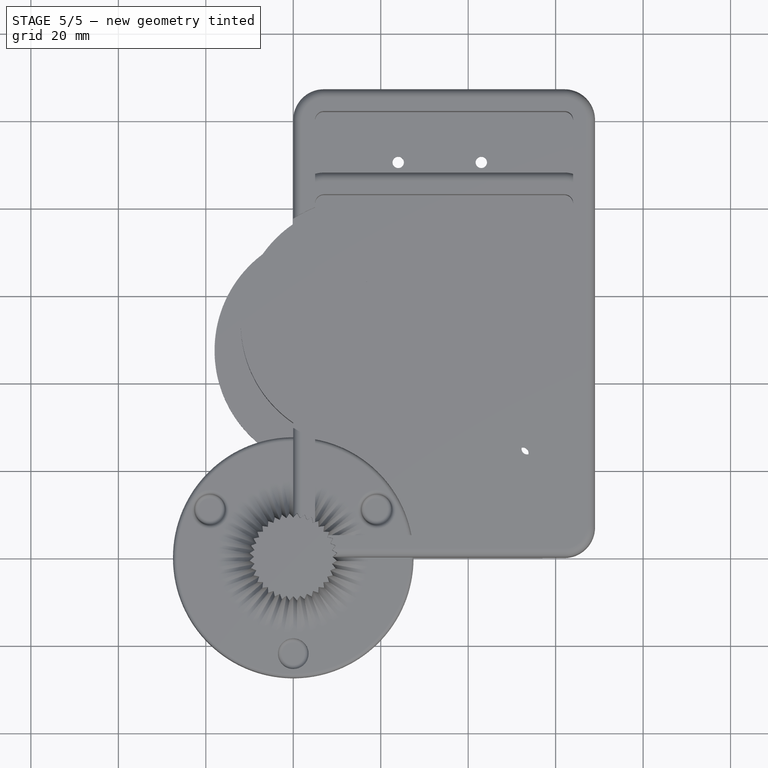
[diagram: stage 5 of 5 — top view after this stage's code; geometry added in this stage tinted green]
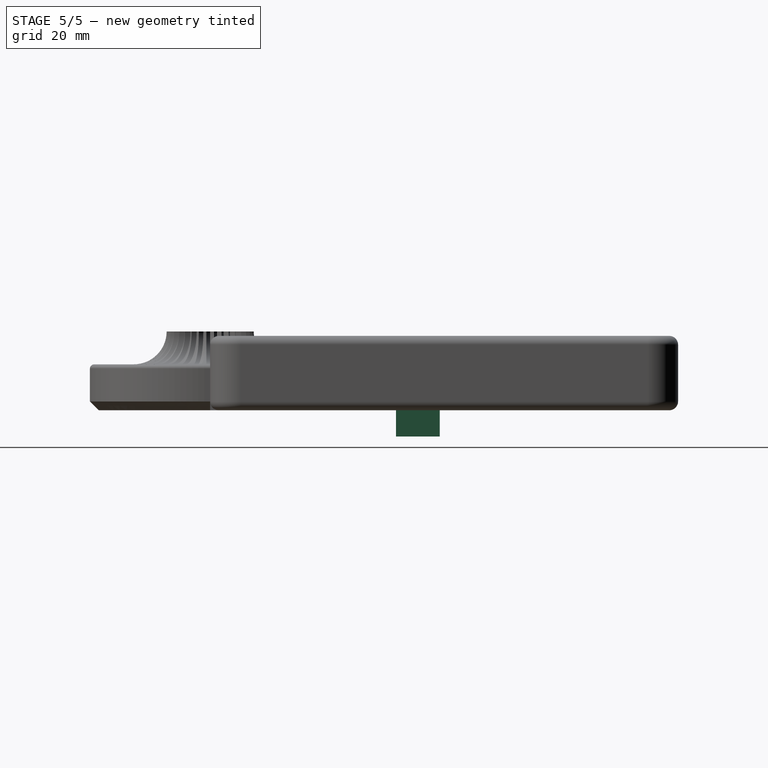
[diagram: stage 5 of 5 — right view after this stage's code; geometry added in this stage tinted green]
FEATURE [Sketcher::SketchObject] Sketch
  FullyConstrained = true
  MapMode = 5
  Support = -> [XY_Plane]
  expr: Constraints[186] = <<Dimensions>>.switch / 2
  expr: Constraints[149] = <<Dimensions>>.knob
  expr: Constraints[144] = <<Dimensions>>.switch * 2
  expr: Constraints[188] = <<Dimensions>>.switch
  expr: Constraints[143] = <<Dimensions>>.switch
  expr: Constraints[115] = <<Dimensions>>.switch / 2
  expr: Constraints[171] = <<Dimensions>>.screw_hole
  expr: Constraints[23] = <<Dimensions>>.switch_hole
  expr: Constraints[116] = <<Dimensions>>.switch / 2
  expr: Constraints[10] = <<Dimensions>>.switch * 5
  expr: Constraints[9] = <<Dimensions>>.switch * 3
  sketch-geometry (73):
    g0: LineSegment StartX=0 StartY=0 StartZ=0 EndX=57 EndY=0 EndZ=0
    g1: LineSegment StartX=57 StartY=0 StartZ=0 EndX=57 EndY=95 EndZ=0
    g2: LineSegment StartX=57 StartY=95 StartZ=0 EndX=0 EndY=95 EndZ=0
    g3: LineSegment StartX=0 StartY=95 StartZ=0 EndX=0 EndY=0 EndZ=0
    g4: LineSegment StartX=16.55 StartY=16.55 StartZ=0 EndX=2.45 EndY=16.55 EndZ=0
    g5: LineSegment StartX=2.45 StartY=16.55 StartZ=0 EndX=2.45 EndY=2.45 EndZ=0
    g6: LineSegment StartX=2.45 StartY=2.45 StartZ=0 EndX=16.55 EndY=2.45 EndZ=0
    g7: LineSegment StartX=16.55 StartY=2.45 StartZ=0 EndX=16.55 EndY=16.55 EndZ=0
    g8: Circle CenterX=9.5 CenterY=9.5 CenterZ=0 NormalX=0 NormalY=0 NormalZ=1 AngleXU=0 Radius=9.97021
    g9: LineSegment StartX=35.55 StartY=16.55 StartZ=0 EndX=21.45 EndY=16.55 EndZ=0
    g10: LineSegment StartX=21.45 StartY=16.55 StartZ=0 EndX=21.45 EndY=2.45 EndZ=0
    g11: LineSegment StartX=21.45 StartY=2.45 StartZ=0 EndX=35.55 EndY=2.45 EndZ=0
    g12: LineSegment StartX=35.55 StartY=2.45 StartZ=0 EndX=35.55 EndY=16.55 EndZ=0
    g13: Circle CenterX=28.5 CenterY=9.5 CenterZ=0 NormalX=0 NormalY=0 NormalZ=1 AngleXU=0 Radius=9.97021
    g14: LineSegment StartX=54.55 StartY=16.55 StartZ=0 EndX=40.45 EndY=16.55 EndZ=0
    g15: LineSegment StartX=40.45 StartY=16.55 StartZ=0 EndX=40.45 EndY=2.45 EndZ=0
    g16: LineSegment StartX=40.45 StartY=2.45 StartZ=0 EndX=54.55 EndY=2.45 EndZ=0
    g17: LineSegment StartX=54.55 StartY=2.45 StartZ=0 EndX=54.55 EndY=16.55 EndZ=0
    g18: Circle CenterX=47.5 CenterY=9.5 CenterZ=0 NormalX=0 NormalY=0 NormalZ=1 AngleXU=0 Radius=9.97021
    g19: LineSegment StartX=54.55 StartY=35.55 StartZ=0 EndX=40.45 EndY=35.55 EndZ=0
    g20: LineSegment StartX=40.45 StartY=35.55 StartZ=0 EndX=40.45 EndY=21.45 EndZ=0
    g21: LineSegment StartX=40.45 StartY=21.45 StartZ=0 EndX=54.55 EndY=21.45 EndZ=0
    g22: LineSegment StartX=54.55 StartY=21.45 StartZ=0 EndX=54.55 EndY=35.55 EndZ=0
    g23: Circle CenterX=47.5 CenterY=28.5 CenterZ=0 NormalX=0 NormalY=0 NormalZ=1 AngleXU=0 Radius=9.97021
    g24: LineSegment StartX=54.55 StartY=73.55 StartZ=0 EndX=40.45 EndY=73.55 EndZ=0
    g25: LineSegment StartX=40.45 StartY=73.55 StartZ=0 EndX=40.45 EndY=59.45 EndZ=0
    g26: LineSegment StartX=40.45 StartY=59.45 StartZ=0 EndX=54.55 EndY=59.45 EndZ=0
    g27: LineSegment StartX=54.55 StartY=59.45 StartZ=0 EndX=54.55 EndY=73.55 EndZ=0
    g28: Circle CenterX=47.5 CenterY=66.5 CenterZ=0 NormalX=0 NormalY=0 NormalZ=1 AngleXU=0 Radius=9.97021
    g29: LineSegment StartX=54.55 StartY=92.55 StartZ=0 EndX=40.45 EndY=92.55 EndZ=0
    g30: LineSegment StartX=40.45 StartY=92.55 StartZ=0 EndX=40.45 EndY=78.45 EndZ=0
    g31: LineSegment StartX=40.45 StartY=78.45 StartZ=0 EndX=54.55 EndY=78.45 EndZ=0
    g32: LineSegment StartX=54.55 StartY=78.45 StartZ=0 EndX=54.55 EndY=92.55 EndZ=0
    g33: Circle CenterX=47.5 CenterY=85.5 CenterZ=0 NormalX=0 NormalY=0 NormalZ=1 AngleXU=0 Radius=9.97021
    g34: LineSegment StartX=35.55 StartY=92.55 StartZ=0 EndX=21.45 EndY=92.55 EndZ=0
    g35: LineSegment StartX=21.45 StartY=92.55 StartZ=0 EndX=21.45 EndY=78.45 EndZ=0
    g36: LineSegment StartX=21.45 StartY=78.45 StartZ=0 EndX=35.55 EndY=78.45 EndZ=0
    g37: LineSegment StartX=35.55 StartY=78.45 StartZ=0 EndX=35.55 EndY=92.55 EndZ=0
    g38: Circle CenterX=28.5 CenterY=85.5 CenterZ=0 NormalX=0 NormalY=0 NormalZ=1 AngleXU=0 Radius=9.97021
    g39: LineSegment StartX=16.55 StartY=92.55 StartZ=0 EndX=2.45 EndY=92.55 EndZ=0
    g40: LineSegment StartX=2.45 StartY=92.55 StartZ=0 EndX=2.45 EndY=78.45 EndZ=0
    g41: LineSegment StartX=2.45 StartY=78.45 StartZ=0 EndX=16.55 EndY=78.45 EndZ=0
    g42: LineSegment StartX=16.55 StartY=78.45 StartZ=0 EndX=16.55 EndY=92.55 EndZ=0
    g43: Circle CenterX=9.5 CenterY=85.5 CenterZ=0 NormalX=0 NormalY=0 NormalZ=1 AngleXU=0 Radius=9.97021
    g44: LineSegment StartX=9.5 StartY=9.5 StartZ=0 EndX=28.5 EndY=9.5 EndZ=0
    g45: LineSegment StartX=28.5 StartY=9.5 StartZ=0 EndX=47.5 EndY=9.5 EndZ=0
    g46: LineSegment StartX=47.5 StartY=9.5 StartZ=0 EndX=47.5 EndY=28.5 EndZ=0
    g47: LineSegment StartX=47.5 StartY=28.5 StartZ=0 EndX=47.5 EndY=66.5 EndZ=0
    g48: LineSegment StartX=47.5 StartY=66.5 StartZ=0 EndX=47.5 EndY=85.5 EndZ=0
    g49: LineSegment StartX=47.5 StartY=85.5 StartZ=0 EndX=28.5 EndY=85.5 EndZ=0
    g50: LineSegment StartX=28.5 StartY=85.5 StartZ=0 EndX=9.5 EndY=85.5 EndZ=0
    g51: LineSegment StartX=9.5 StartY=9.5 StartZ=0 EndX=9.5 EndY=47.5 EndZ=0
    g52: Circle CenterX=9.5 CenterY=47.5 CenterZ=0 NormalX=0 NormalY=0 NormalZ=1 AngleXU=0 Radius=3.5
    g53: LineSegment StartX=9.5 StartY=9.5 StartZ=0 EndX=19 EndY=9.5 EndZ=0
    g54: LineSegment StartX=28.5 StartY=9.5 StartZ=0 EndX=38 EndY=9.5 EndZ=0
    g55: LineSegment StartX=47.5 StartY=9.5 StartZ=0 EndX=47.5 EndY=19 EndZ=0
    g56: LineSegment StartX=47.5 StartY=28.5 StartZ=0 EndX=38 EndY=28.5 EndZ=0
    g57: LineSegment StartX=47.5 StartY=66.5 StartZ=0 EndX=38 EndY=66.5 EndZ=0
    g58: LineSegment StartX=9.5 StartY=85.5 StartZ=0 EndX=19 EndY=85.5 EndZ=0
    g59: LineSegment StartX=28.5 StartY=85.5 StartZ=0 EndX=38 EndY=85.5 EndZ=0
    g60: LineSegment StartX=38 StartY=28.5 StartZ=0 EndX=19 EndY=28.5 EndZ=0
    g61: LineSegment StartX=38 StartY=66.5 StartZ=0 EndX=19 EndY=66.5 EndZ=0
    g62: Circle CenterX=19 CenterY=85.5 CenterZ=0 NormalX=0 NormalY=0 NormalZ=1 AngleXU=0 Radius=1.3
    g63: Circle CenterX=38 CenterY=85.5 CenterZ=0 NormalX=0 NormalY=0 NormalZ=1 AngleXU=0 Radius=1.3
    g64: Circle CenterX=38 CenterY=66.5 CenterZ=0 NormalX=0 NormalY=0 NormalZ=1 AngleXU=0 Radius=1.3
    g65: Circle CenterX=19 CenterY=66.5 CenterZ=0 NormalX=0 NormalY=0 NormalZ=1 AngleXU=0 Radius=1.3
    g66: Circle CenterX=38 CenterY=28.5 CenterZ=0 NormalX=0 NormalY=0 NormalZ=1 AngleXU=0 Radius=1.3
    g67: Circle CenterX=19 CenterY=28.5 CenterZ=0 NormalX=0 NormalY=0 NormalZ=1 AngleXU=0 Radius=1.3
    g68: Circle CenterX=19 CenterY=9.5 CenterZ=0 NormalX=0 NormalY=0 NormalZ=1 AngleXU=0 Radius=1.3
    g69: Circle CenterX=38 CenterY=9.5 CenterZ=0 NormalX=0 NormalY=0 NormalZ=1 AngleXU=0 Radius=1.3
    g70: Circle CenterX=47.5 CenterY=19 CenterZ=0 NormalX=0 NormalY=0 NormalZ=1 AngleXU=0 Radius=1.3
    g71: LineSegment StartX=47.5 StartY=85.5 StartZ=0 EndX=47.5 EndY=76 EndZ=0
    g72: Circle CenterX=47.5 CenterY=76 CenterZ=0 NormalX=0 NormalY=0 NormalZ=1 AngleXU=0 Radius=1.3
  constraints (200):
    c: Coincident(g0,g-1)
    c: Vertical(g1)
    c: Horizontal(g2)
    c: Coincident(g3,g0)
    c: Vertical(g3)
    c: Horizontal(g0)
    c: Coincident(g0,g1)
    c: Coincident(g1,g2)
    c: Coincident(g3,g2)
    c: DistanceX(g0,g0) = 57
    c: DistanceY(g1,g1) = 95
    c: Coincident(g4,g5)
    c: Coincident(g5,g6)
    c: Coincident(g6,g7)
    c: Coincident(g7,g4)
    c: Equal(g4,g5)
    c: Equal(g4,g6)
    c: Equal(g4,g7)
    c: PointOnObject(g4,g8)
    c: PointOnObject(g5,g8)
    c: PointOnObject(g6,g8)
    c: PointOnObject(g7,g8)
    c: Horizontal(g4)
    c: DistanceX(g4,g4) = 14.1
    c: Coincident(g9,g10)
    c: Coincident(g10,g11)
    c: Coincident(g11,g12)
    c: Coincident(g12,g9)
    c: Equal(g9,g10)
    c: Equal(g9,g11)
    c: Equal(g9,g12)
    c: PointOnObject(g9,g13)
    c: PointOnObject(g10,g13)
    c: PointOnObject(g11,g13)
    c: PointOnObject(g12,g13)
    c: Horizontal(g9)
    c: Equal(g4,g9)
    c: Coincident(g14,g15)
    c: Coincident(g15,g16)
    c: Coincident(g16,g17)
    c: Coincident(g17,g14)
    c: Equal(g14,g15)
    c: Equal(g14,g16)
    c: Equal(g14,g17)
    c: PointOnObject(g14,g18)
    c: PointOnObject(g15,g18)
    c: PointOnObject(g16,g18)
    c: PointOnObject(g17,g18)
    c: Coincident(g19,g20)
    c: Coincident(g20,g21)
    c: Coincident(g21,g22)
    c: Coincident(g22,g19)
    c: Equal(g19,g20)
    c: Equal(g19,g21)
    c: Equal(g19,g22)
    c: PointOnObject(g19,g23)
    c: PointOnObject(g20,g23)
    c: PointOnObject(g21,g23)
    c: PointOnObject(g22,g23)
    c: Coincident(g24,g25)
    c: Coincident(g25,g26)
    c: Coincident(g26,g27)
    c: Coincident(g27,g24)
    c: Equal(g24,g25)
    c: Equal(g24,g26)
    c: Equal(g24,g27)
    c: PointOnObject(g24,g28)
    c: PointOnObject(g25,g28)
    c: PointOnObject(g26,g28)
    c: PointOnObject(g27,g28)
    c: Coincident(g29,g30)
    c: Coincident(g30,g31)
    c: Coincident(g31,g32)
    c: Coincident(g32,g29)
    c: Equal(g29,g30)
    c: Equal(g29,g31)
    c: Equal(g29,g32)
    c: PointOnObject(g29,g33)
    c: PointOnObject(g30,g33)
    c: PointOnObject(g31,g33)
    c: PointOnObject(g32,g33)
    c: Coincident(g34,g35)
    c: Coincident(g35,g36)
    c: Coincident(g36,g37)
    c: Coincident(g37,g34)
    c: Equal(g34,g35)
    c: Equal(g34,g36)
    c: Equal(g34,g37)
    c: PointOnObject(g34,g38)
    c: PointOnObject(g35,g38)
    c: PointOnObject(g36,g38)
    c: PointOnObject(g37,g38)
    c: Coincident(g39,g40)
    c: Coincident(g40,g41)
    c: Coincident(g41,g42)
    c: Coincident(g42,g39)
    c: Equal(g39,g40)
    c: Equal(g39,g41)
    c: Equal(g39,g42)
    c: PointOnObject(g39,g43)
    c: PointOnObject(g40,g43)
    c: PointOnObject(g41,g43)
    c: PointOnObject(g42,g43)
    c: Equal(g14,g4)
    c: Equal(g4,g19)
    c: Equal(g19,g24)
    c: Equal(g24,g29)
    c: Equal(g29,g34)
    c: Equal(g34,g39)
    c: Horizontal(g39)
    c: Horizontal(g34)
    c: Horizontal(g29)
    c: Horizontal(g24)
    c: Horizontal(g19)
    c: Horizontal(g14)
    c: DistanceX(g0,g8) = 9.5
    c: DistanceY(g0,g8) = 9.5
    c: Coincident(g44,g8)
    c: Coincident(g44,g13)
    c: Coincident(g45,g13)
    c: Coincident(g45,g18)
    c: Coincident(g46,g23)
    c: Coincident(g47,g23)
    c: Coincident(g47,g28)
    c: Coincident(g48,g28)
    c: Coincident(g48,g33)
    c: Coincident(g49,g33)
    c: Coincident(g49,g38)
    c: Coincident(g50,g43)
    c: Horizontal(g50)
    c: Horizontal(g49)
    c: Coincident(g38,g50)
    c: Vertical(g48)
    c: Vertical(g47)
    c: Vertical(g46)
    c: Coincident(g46,g18)
    c: Horizontal(g45)
    c: Horizontal(g44)
    c: Equal(g45,g44)
    c: Equal(g44,g46)
    c: Equal(g46,g48)
    c: Equal(g48,g49)
    c: Equal(g49,g50)
    c: DistanceX(g44,g44) = 19
    c: DistanceY(g47,g47) = 38
    c: Coincident(g51,g8)
    c: Vertical(g51)
    c: Equal(g51,g47)
    c: Coincident(g52,g51)
    c: Diameter(g52) = 7
    c: Coincident(g53,g8)
    c: Coincident(g54,g13)
    c: Coincident(g55,g18)
    c: Coincident(g56,g23)
    c: Horizontal(g56)
    c: Coincident(g57,g28)
    c: Coincident(g58,g43)
    c: Coincident(g59,g38)
    c: Coincident(g60,g56)
    c: Horizontal(g60)
    c: Coincident(g61,g57)
    c: Horizontal(g61)
    c: Coincident(g62,g58)
    c: Coincident(g63,g59)
    c: Coincident(g64,g57)
    c: Coincident(g65,g61)
    c: Coincident(g66,g56)
    c: Coincident(g67,g60)
    c: Coincident(g68,g53)
    c: Coincident(g69,g54)
    c: Coincident(g70,g55)
    c: Diameter(g68) = 2.6
    c: Equal(g68,g69)
    c: Equal(g69,g67)
    c: Equal(g67,g66)
    c: Equal(g66,g70)
    c: Equal(g70,g64)
    c: Equal(g64,g65)
    c: Equal(g65,g62)
    c: Equal(g62,g63)
    c: Equal(g53,g54)
    c: Equal(g54,g55)
    c: Equal(g55,g56)
    c: Equal(g56,g57)
    c: Equal(g57,g59)
    c: Equal(g59,g58)
    c: DistanceX(g56,g56) = 9.5
    c: Equal(g60,g61)
    c: DistanceX(g60,g60) = 19
    c: Horizontal(g53)
    c: Horizontal(g54)
    c: Vertical(g55)
    c: Horizontal(g57)
    c: Horizontal(g59)
    c: Horizontal(g58)
    c: Coincident(g71,g33)
    c: Coincident(g72,g71)
    c: Equal(g66,g72)
    c: Equal(g71,g57)
    c: Vertical(g71)
FEATURE [PartDesign::Pad] Pad
  Direction = (1,1,1)
  Length = 3
  Length2 = 100
  Profile = -> Sketch
  Type = 0
FEATURE [Sketcher::SketchObject] Sketch008
  ExternalGeometry = -> [Pad]
  FullyConstrained = true
  MapMode = 5
  Placement = pos=(0,0,3) rot=(0,0,1;0rad)
  Support = -> [Pad]
  expr: Constraints[19] = <<Dimensions>>.screw_head
  sketch-geometry (10):
    g0: Circle CenterX=19 CenterY=28.5 CenterZ=0 NormalX=0 NormalY=0 NormalZ=1 AngleXU=0 Radius=2.5
    g1: Circle CenterX=38 CenterY=28.5 CenterZ=0 NormalX=0 NormalY=0 NormalZ=1 AngleXU=0 Radius=2.5
    g2: Circle CenterX=47.5 CenterY=19 CenterZ=0 NormalX=0 NormalY=0 NormalZ=1 AngleXU=0 Radius=2.5
    g3: Circle CenterX=38 CenterY=9.5 CenterZ=0 NormalX=0 NormalY=0 NormalZ=1 AngleXU=0 Radius=2.5
    g4: Circle CenterX=19 CenterY=9.5 CenterZ=0 NormalX=0 NormalY=0 NormalZ=1 AngleXU=0 Radius=2.5
    g5: Circle CenterX=19 CenterY=66.5 CenterZ=0 NormalX=0 NormalY=0 NormalZ=1 AngleXU=0 Radius=2.5
    g6: Circle CenterX=38 CenterY=85.5 CenterZ=0 NormalX=0 NormalY=0 NormalZ=1 AngleXU=0 Radius=2.5
    g7: Circle CenterX=38 CenterY=66.5 CenterZ=0 NormalX=0 NormalY=0 NormalZ=1 AngleXU=0 Radius=2.5
    g8: Circle CenterX=47.5 CenterY=76 CenterZ=0 NormalX=0 NormalY=0 NormalZ=1 AngleXU=0 Radius=2.5
    g9: Circle CenterX=19 CenterY=85.5 CenterZ=0 NormalX=0 NormalY=0 NormalZ=1 AngleXU=0 Radius=2.5
  constraints (20):
    c: Coincident(g0,g-3)
    c: Coincident(g1,g-7)
    c: Coincident(g2,g-6)
    c: Coincident(g3,g-5)
    c: Coincident(g4,g-4)
    c: Coincident(g5,g-8)
    c: Coincident(g6,g-9)
    c: Coincident(g7,g-10)
    c: Coincident(g8,g-11)
    c: Coincident(g9,g-12)
    c: Equal(g0,g1)
    c: Equal(g1,g2)
    c: Equal(g2,g3)
    c: Equal(g3,g4)
    c: Equal(g4,g5)
    c: Equal(g5,g6)
    c: Equal(g6,g7)
    c: Equal(g7,g8)
    c: Equal(g8,g9)
    c: Diameter(g9) = 5
FEATURE [PartDesign::Pocket] Pocket
  BaseFeature = -> Pad
  Length = 1
  Length2 = 100
  Profile = -> Sketch008
  Type = 0
FEATURE [Sketcher::SketchObject] Sketch009
  ExternalGeometry = -> [Pocket]
  FullyConstrained = true
  MapMode = 5
  Placement = pos=(0,0,0) rot=(1,0,0;3.14159rad)
  Support = -> [Pocket]
  sketch-geometry (6):
    g0: LineSegment StartX=23.6 StartY=-42.5 StartZ=0 EndX=20.6 EndY=-42.5 EndZ=0
    g1: LineSegment StartX=20.6 StartY=-42.5 StartZ=0 EndX=20.6 EndY=-52.5 EndZ=0
    g2: LineSegment StartX=20.6 StartY=-52.5 StartZ=0 EndX=23.6 EndY=-52.5 EndZ=0
    g3: LineSegment StartX=23.6 StartY=-52.5 StartZ=0 EndX=23.6 EndY=-42.5 EndZ=0
    g4: LineSegment StartX=23.6 StartY=-52.5 StartZ=0 EndX=57 EndY=-95 EndZ=0
    g5: LineSegment StartX=23.6 StartY=-42.5 StartZ=0 EndX=57 EndY=0 EndZ=0
  constraints (16):
    c: Coincident(g0,g1)
    c: Coincident(g1,g2)
    c: Coincident(g2,g3)
    c: Coincident(g3,g0)
    c: Horizontal(g0)
    c: Horizontal(g2)
    c: Vertical(g1)
    c: Vertical(g3)
    c: DistanceY(g3,g3) = 10
    c: DistanceX(g2,g2) = 3
    c: Coincident(g4,g2)
    c: Coincident(g4,g-3)
    c: Coincident(g5,g0)
    c: Coincident(g5,g-3)
    c: Equal(g5,g4)
    c: DistanceX(g2,g4) = 33.4
FEATURE [PartDesign::Pad] Pad002
  BaseFeature = -> Pocket
  Direction = (1,1,1)
  Length = 6
  Length2 = 100
  Profile = -> Sketch009
  Type = 0
FEATURE [Sketcher::SketchObject] Sketch010
  ExternalGeometry = -> [Pad002]
  FullyConstrained = true
  MapMode = 5
  Placement = pos=(0,0,0) rot=(1,0,0;3.14159rad)
  Support = -> [Pad002]
  sketch-geometry (5):
    g0: LineSegment StartX=16 StartY=-40 StartZ=0 EndX=3 EndY=-40 EndZ=0
    g1: LineSegment StartX=3 StartY=-40 StartZ=0 EndX=3 EndY=-55 EndZ=0
    g2: LineSegment StartX=3 StartY=-55 StartZ=0 EndX=16 EndY=-55 EndZ=0
    g3: LineSegment StartX=16 StartY=-55 StartZ=0 EndX=16 EndY=-40 EndZ=0
    g4: Circle CenterX=9.5 CenterY=-47.5 CenterZ=0 NormalX=0 NormalY=0 NormalZ=1 AngleXU=0 Radius=9.92472
  constraints (14):
    c: Coincident(g0,g1)
    c: Coincident(g1,g2)
    c: Coincident(g2,g3)
    c: Coincident(g3,g0)
    c: Equal(g0,g2)
    c: PointOnObject(g0,g4)
    c: PointOnObject(g1,g4)
    c: PointOnObject(g2,g4)
    c: PointOnObject(g3,g4)
    c: Coincident(g4,g-3)
    c: Equal(g1,g3)
    c: Horizontal(g0)
    c: DistanceX(g0,g0) = 13
    c: DistanceY(g3,g3) = 15
FEATURE [PartDesign::Pocket] Pocket006
  BaseFeature = -> Pad002
  Length = 2
  Length2 = 100
  Profile = -> Sketch010
  Type = 0
FEATURE [Sketcher::SketchObject] Sketch011
  ExternalGeometry = -> [Pocket006]
  FullyConstrained = true
  MapMode = 5
  Placement = pos=(23.6,0,0) rot=(0.57735,0.57735,0.57735;2.0944rad)
  Support = -> [Pocket006]
  sketch-geometry (4):
    g0: LineSegment StartX=52.5 StartY=-6 StartZ=0 EndX=42.5 EndY=-6 EndZ=0
    g1: LineSegment StartX=42.5 StartY=-6 StartZ=0 EndX=42.5 EndY=-3 EndZ=0
    g2: LineSegment StartX=42.5 StartY=-3 StartZ=0 EndX=52.5 EndY=-3 EndZ=0
    g3: LineSegment StartX=52.5 StartY=-3 StartZ=0 EndX=52.5 EndY=-6 EndZ=0
  constraints (10):
    c: Coincident(g0,g1)
    c: Coincident(g1,g2)
    c: Coincident(g2,g3)
    c: Coincident(g3,g0)
    c: Horizontal(g2)
    c: Vertical(g1)
    c: Vertical(g3)
    c: DistanceY(g1,g1) = 3
    c: Coincident(g-3,g0)
    c: Coincident(g0,g-3)
FEATURE [PartDesign::Pad] Pad003
  BaseFeature = -> Pocket006
  Direction = (1,1,1)
  Length = 10
  Length2 = 100
  Profile = -> Sketch011
  Refine = true
  Type = 0
FEATURE [PartDesign::Fillet] Fillet
  Base = -> Pad003 [Edge2,Edge1,Edge5,Edge8]
  BaseFeature = -> Pad003
  Radius = 1
  SupportTransform = false
FEATURE [PartDesign::Body] Body  label="Plate"
  Group = -> [Sketch,Pad,Sketch008,Pocket,Sketch009,Pad002,Sketch010,Pocket006,Sketch011,Pad003,Fillet]
  Origin = -> Origin
  Placement = pos=(6,6,11) rot=(0,0,1;0rad)
  Tip = -> Fillet
FEATURE [Sketcher::SketchObject] Sketch012
  ExternalGeometry = -> [Pocket005]
  FullyConstrained = true
  MapMode = 5
  Placement = pos=(64,0,0) rot=(0.57735,-0.57735,-0.57735;2.0944rad)
  Support = -> [Pocket005]
  expr: Constraints[9] = <<Dimensions>>.thickness * 2
  sketch-geometry (6):
    g0: LineSegment StartX=-66 StartY=9 StartZ=0 EndX=-41 EndY=9 EndZ=0
    g1: LineSegment StartX=-41 StartY=9 StartZ=0 EndX=-41 EndY=11 EndZ=0
    g2: LineSegment StartX=-41 StartY=11 StartZ=0 EndX=-66 EndY=11 EndZ=0
    g3: LineSegment StartX=-66 StartY=11 StartZ=0 EndX=-66 EndY=9 EndZ=0
    g4: LineSegment StartX=-66 StartY=11 StartZ=0 EndX=-100 EndY=17 EndZ=0
    g5: LineSegment StartX=-41 StartY=11 StartZ=0 EndX=-7 EndY=17 EndZ=0
  constraints (16):
    c: Coincident(g0,g1)
    c: Coincident(g1,g2)
    c: Coincident(g2,g3)
    c: Coincident(g3,g0)
    c: Horizontal(g0)
    c: Horizontal(g2)
    c: Vertical(g1)
    c: Vertical(g3)
    c: DistanceY(g1,g1) = 2
    c: DistanceY(g1,g-3) = 6
    c: Coincident(g4,g2)
    c: Coincident(g4,g-3)
    c: Coincident(g5,g1)
    c: Coincident(g5,g-3)
    c: Equal(g4,g5)
    c: DistanceX(g2,g2) = 25
FEATURE [PartDesign::Pocket] Pocket007
  BaseFeature = -> Pocket005
  Length = 3.5
  Length2 = 100
  Profile = -> Sketch012
  Type = 0
  expr: Length = <<Dimensions>>.wall - 1.5mm
FEATURE [Sketcher::SketchObject] Sketch013
  ExternalGeometry = -> [Pocket007]
  FullyConstrained = true
  MapMode = 5
  Placement = pos=(64,0,0) rot=(0.57735,-0.57735,-0.57735;2.0944rad)
  Support = -> [Pocket007]
  sketch-geometry (7):
    g0: LineSegment StartX=-56.5 StartY=9.5 StartZ=0 EndX=-50.5 EndY=9.5 EndZ=0
    g1: ArcOfCircle CenterX=-56.5 CenterY=7.5 CenterZ=0 NormalX=0 NormalY=0 NormalZ=1 AngleXU=0 Radius=2 StartAngle=1.5708 EndAngle=4.71239
    g2: ArcOfCircle CenterX=-50.5 CenterY=7.5 CenterZ=0 NormalX=0 NormalY=0 NormalZ=1 AngleXU=0 Radius=2 StartAngle=4.71239 EndAngle=7.85398
    g3: LineSegment StartX=-56.5 StartY=5.5 StartZ=0 EndX=-50.5 EndY=5.5 EndZ=0
    g4: LineSegment StartX=-58.5 StartY=7.5 StartZ=0 EndX=-48.5 EndY=7.5 EndZ=0
    g5: LineSegment StartX=-66 StartY=9 StartZ=0 EndX=-58.5 EndY=7.5 EndZ=0
    g6: LineSegment StartX=-48.5 StartY=7.5 StartZ=0 EndX=-41 EndY=9 EndZ=0
  constraints (22):
    c: Horizontal(g0)
    c: Coincident(g1,g0)
    c: Coincident(g2,g0)
    c: Coincident(g3,g1)
    c: Coincident(g3,g2)
    c: Horizontal(g3)
    c: PointOnObject(g4,g1)
    c: PointOnObject(g4,g2)
    c: Horizontal(g4)
    c: PointOnObject(g1,g4)
    c: DistanceX(g4,g4) = 10
    c: Vertical(g0,g2)
    c: Vertical(g2,g2)
    c: Vertical(g0,g1)
    c: Vertical(g1,g1)
    c: DistanceY(g1,g0) = 4
    c: DistanceY(g-3,g0) = 0.5
    c: Coincident(g5,g-3)
    c: Coincident(g5,g4)
    c: Coincident(g6,g4)
    c: Coincident(g6,g-3)
    c: Equal(g6,g5)
FEATURE [PartDesign::Pocket] Pocket008
  BaseFeature = -> Pocket007
  Length = 6
  Length2 = 100
  Profile = -> Sketch013
  Type = 0
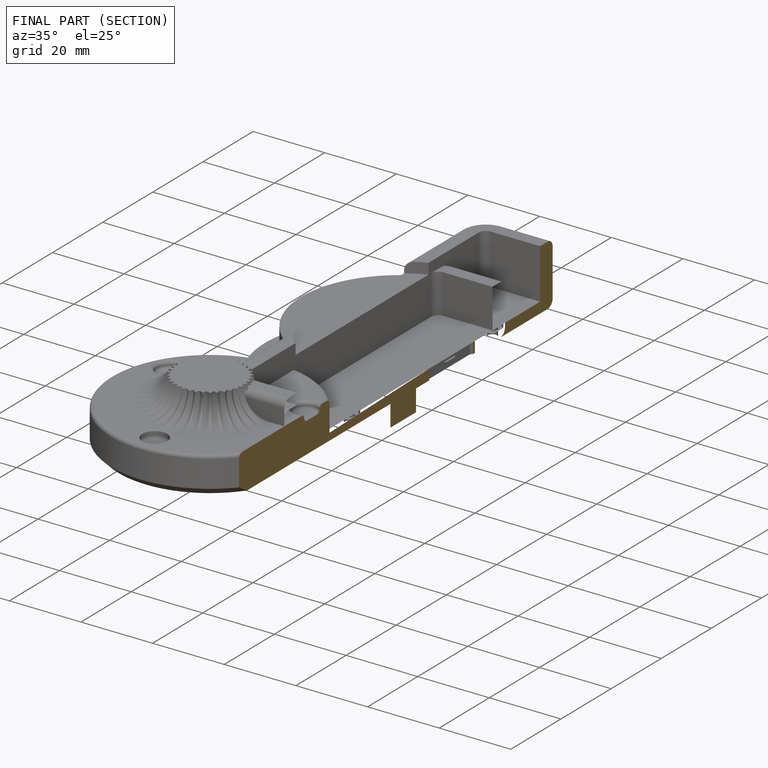
[diagram: finished part — half-section view (interior)]
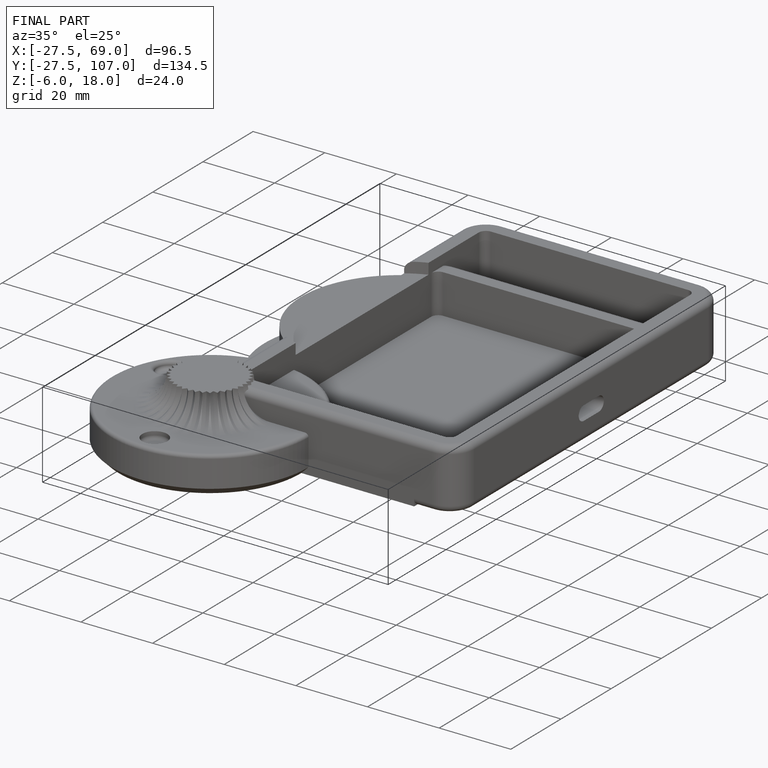
[diagram: finished part — iso view with bounding-box wireframe]
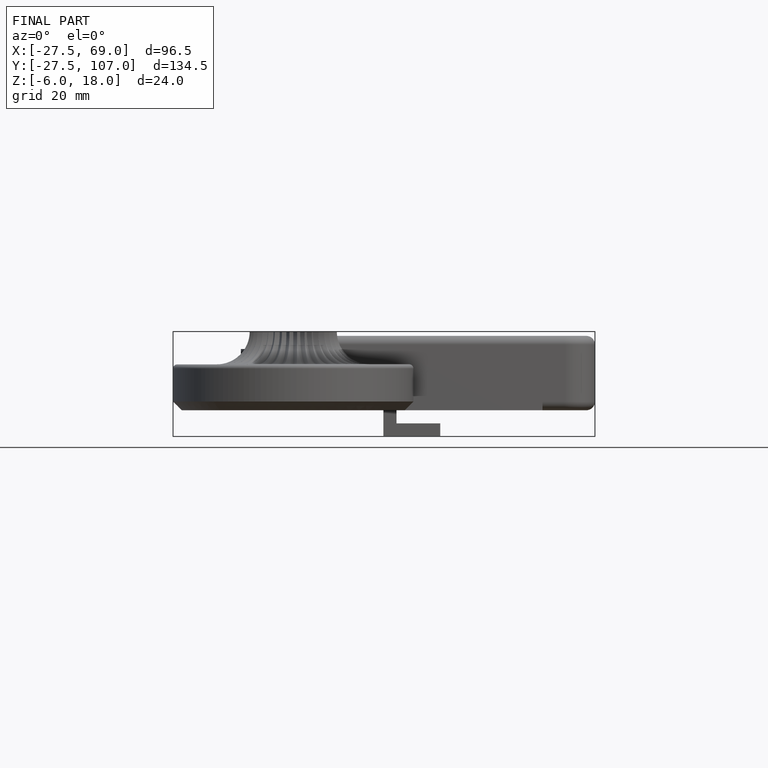
[diagram: finished part — front view with bounding-box wireframe]
